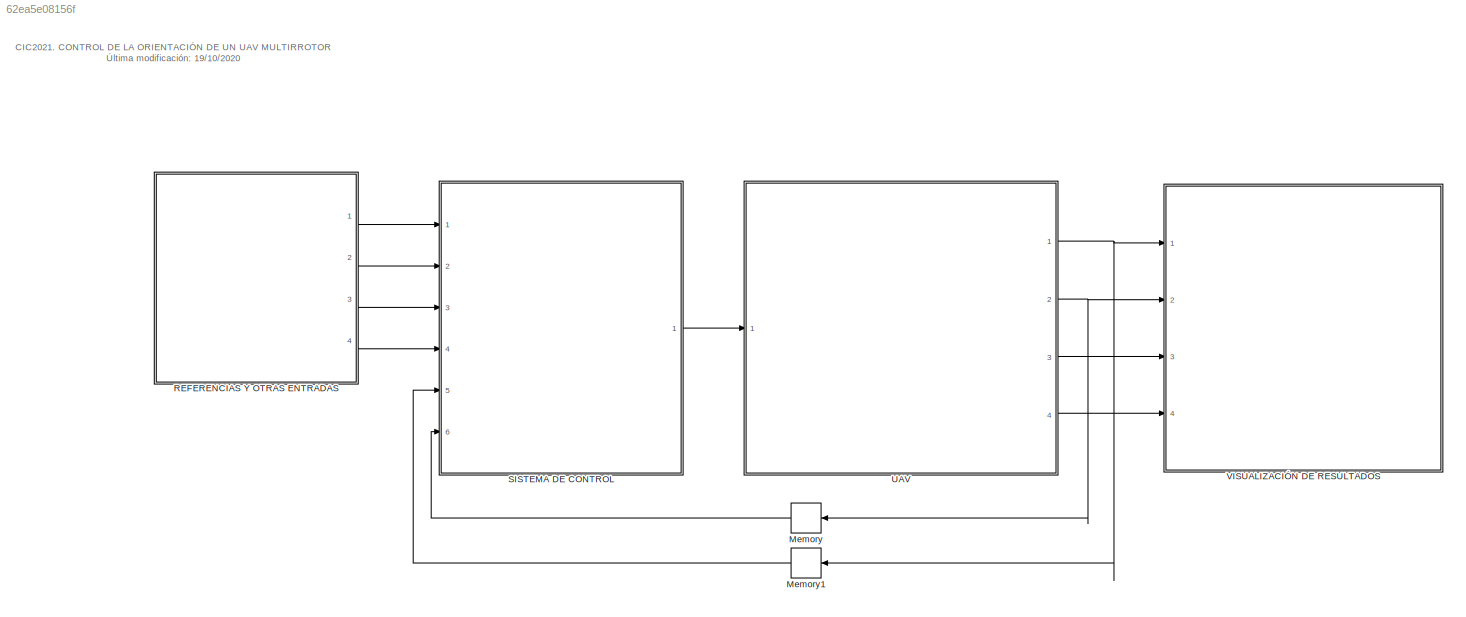
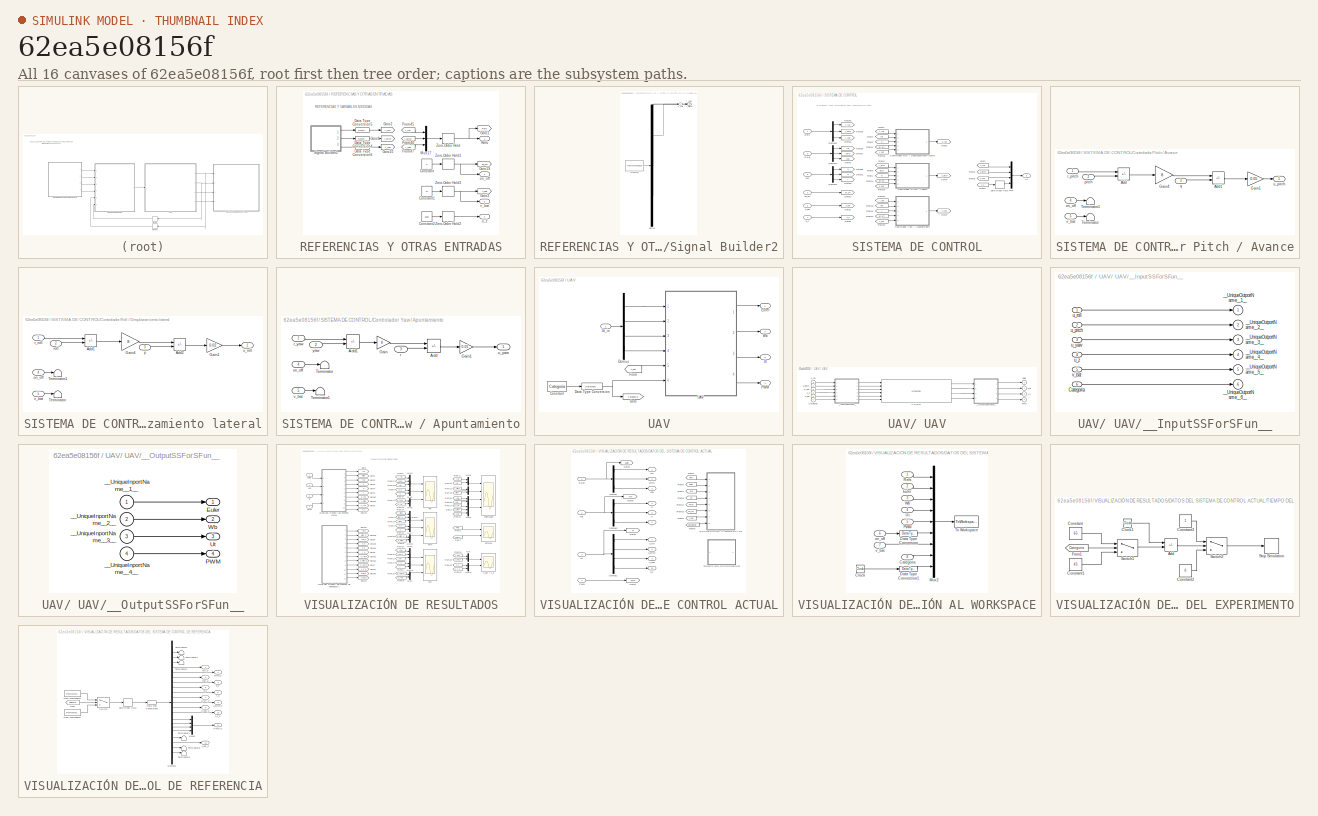
[diagram: thumbnail index - all 16 canvases of the model, root first then tree order]
MODEL slx_62ea5e08156f
KIND model
CONFIG AbsTol = auto
CONFIG EnableMultiTasking = off
CONFIG FixedStep = Ts
CONFIG InitFcn = Ts_com =0.0200;\nTs= 0.0100;\nload DatosCref;\n
CONFIG MaxStep = Ts
CONFIG MinStep = auto
CONFIG RelTol = 1e-3
CONFIG SampleTimeConstraint = Unconstrained
CONFIG SolverName = FixedStepAuto
CONFIG StartTime = 0.0
CONFIG StopFcn = clear tf Ts Ts_com tout DatosCrefC1 DatosCrefC2;\n
CONFIG StopTime = inf
BLOCK [Memory] Memory
BLOCK [Memory] Memory1
BLOCK [SubSystem] REFERENCIAS Y OTRAS ENTRADAS
  Ports = [0, 4]
  RequestExecContextInheritance = off
BLOCK [Constant] REFERENCIAS Y OTRAS ENTRADAS/Constant
  OutDataTypeStr = int16
  Value = 0
BLOCK [Constant] REFERENCIAS Y OTRAS ENTRADAS/Constant1
  OutDataTypeStr = single
  Value = 11
BLOCK [Constant] REFERENCIAS Y OTRAS ENTRADAS/Constant2
  OutDataTypeStr = single
  Value = 1500
BLOCK [DataTypeConversion] REFERENCIAS Y OTRAS ENTRADAS/Data Type Conversion4
  OutDataTypeStr = single
  RndMeth = Floor
  SaturateOnIntegerOverflow = off
BLOCK [DataTypeConversion] REFERENCIAS Y OTRAS ENTRADAS/Data Type Conversion5
  OutDataTypeStr = single
  RndMeth = Floor
  SaturateOnIntegerOverflow = off
BLOCK [DataTypeConversion] REFERENCIAS Y OTRAS ENTRADAS/Data Type Conversion6
  OutDataTypeStr = single
  RndMeth = Floor
  SaturateOnIntegerOverflow = off
BLOCK [From] REFERENCIAS Y OTRAS ENTRADAS/From45
  GotoTag = r_roll
  TagVisibility = global
BLOCK [From] REFERENCIAS Y OTRAS ENTRADAS/From46
  GotoTag = r_pitch
  TagVisibility = global
BLOCK [From] REFERENCIAS Y OTRAS ENTRADAS/From47
  GotoTag = r_yaw
  TagVisibility = global
BLOCK [Goto] REFERENCIAS Y OTRAS ENTRADAS/Goto1
  GotoTag = Refs
  TagVisibility = global
BLOCK [Goto] REFERENCIAS Y OTRAS ENTRADAS/Goto10
  GotoTag = r_yaw
  TagVisibility = global
BLOCK [Goto] REFERENCIAS Y OTRAS ENTRADAS/Goto19
  GotoTag = on_off
  TagVisibility = global
BLOCK [Goto] REFERENCIAS Y OTRAS ENTRADAS/Goto2
  GotoTag = r_roll
  TagVisibility = global
BLOCK [Goto] REFERENCIAS Y OTRAS ENTRADAS/Goto3
  GotoTag = v_bat
  TagVisibility = global
BLOCK [Goto] REFERENCIAS Y OTRAS ENTRADAS/Goto9
  GotoTag = r_pitch
  TagVisibility = global
BLOCK [Mux] REFERENCIAS Y OTRAS ENTRADAS/Mux17
  DisplayOption = bar
  Inputs = 3
  Ports = [3, 1]
BLOCK [Outport] REFERENCIAS Y OTRAS ENTRADAS/Refs
  VectorParamsAs1DForOutWhenUnconnected = off
BLOCK [SubSystem] REFERENCIAS Y OTRAS ENTRADAS/Signal Builder2
  ClipboardFcn = sigbuilder_block('clipboard');
  CloseFcn = sigbuilder_block('close');
  ContinueFcn = sigbuilder_block('continue');
  CopyFcn = sigbuilder_block('copy');
  DeleteFcn = sigbuilder_block('delete');
  LoadFcn = sigbuilder_block('load');
  MaskHideContents = on
  ModelCloseFcn = sigbuilder_block('modelClose');
  NameChangeFcn = sigbuilder_block('namechange');
  OpenFcn = sigbuilder_block('open',[571.8 30.6 574.8 516.6 ]);
  PauseFcn = sigbuilder_block('pause');
  Ports = [0, 3]
  PreSaveFcn = sigbuilder_block('preSave');
  RequestExecContextInheritance = off
  StartFcn = sigbuilder_block('start');
  StopFcn = sigbuilder_block('stop');
  Tag = STV Subsys
BLOCK [Demux] REFERENCIAS Y OTRAS ENTRADAS/Signal Builder2/Demux
  DisplayOption = none
  Outputs = 3
  Ports = [1, 3]
  Tag = STV Demux
BLOCK [FromWorkspace] REFERENCIAS Y OTRAS ENTRADAS/Signal Builder2/FromWs
  Tag = STV FromWs
  VariableName = tuvar
BLOCK [Outport] REFERENCIAS Y OTRAS ENTRADAS/Signal Builder2/r_pitch
  Port = 2
  Tag = STV Outport
  VectorParamsAs1DForOutWhenUnconnected = off
BLOCK [Outport] REFERENCIAS Y OTRAS ENTRADAS/Signal Builder2/r_roll
  Tag = STV Outport
  VectorParamsAs1DForOutWhenUnconnected = off
BLOCK [Outport] REFERENCIAS Y OTRAS ENTRADAS/Signal Builder2/r_yaw
  Port = 3
  Tag = STV Outport
  VectorParamsAs1DForOutWhenUnconnected = off
BLOCK [ZeroOrderHold] REFERENCIAS Y OTRAS ENTRADAS/Zero-Order Hold
  SampleTime = Ts_com
BLOCK [ZeroOrderHold] REFERENCIAS Y OTRAS ENTRADAS/Zero-Order Hold1
  SampleTime = Ts_com
BLOCK [ZeroOrderHold] REFERENCIAS Y OTRAS ENTRADAS/Zero-Order Hold2
  SampleTime = Ts_com
BLOCK [ZeroOrderHold] REFERENCIAS Y OTRAS ENTRADAS/Zero-Order Hold3
  SampleTime = Ts
BLOCK [Outport] REFERENCIAS Y OTRAS ENTRADAS/on_off
  Port = 2
  VectorParamsAs1DForOutWhenUnconnected = off
BLOCK [Outport] REFERENCIAS Y OTRAS ENTRADAS/u_z
  Port = 4
  VectorParamsAs1DForOutWhenUnconnected = off
BLOCK [Outport] REFERENCIAS Y OTRAS ENTRADAS/v_bat
  Port = 3
  VectorParamsAs1DForOutWhenUnconnected = off
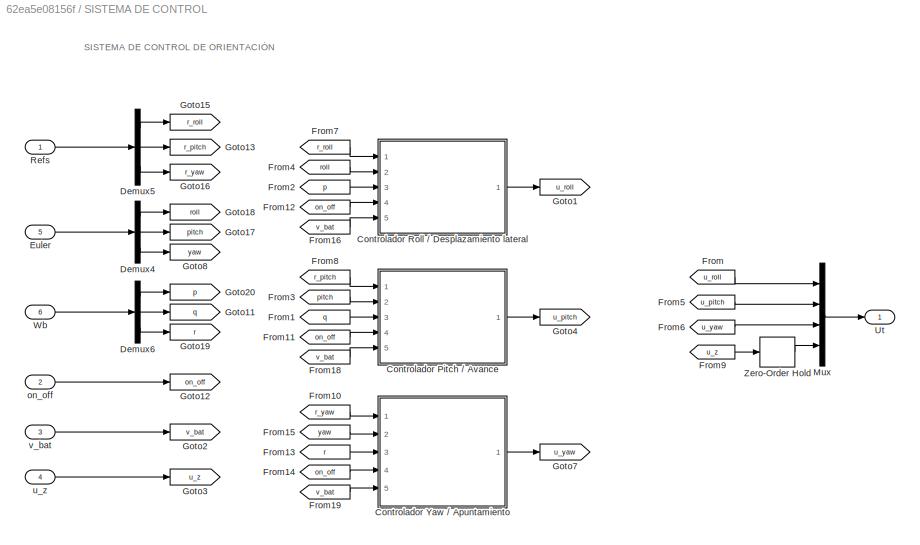
BLOCK [SubSystem] SISTEMA DE CONTROL
  Ports = [6, 1]
  RequestExecContextInheritance = off
BLOCK [SubSystem] SISTEMA DE CONTROL/Controlador Pitch // Avance
  Ports = [5, 1]
  RequestExecContextInheritance = off
BLOCK [Sum] SISTEMA DE CONTROL/Controlador Pitch // Avance/Add
  IconShape = rectangular
  Inputs = +-
  Ports = [2, 1]
BLOCK [Sum] SISTEMA DE CONTROL/Controlador Pitch // Avance/Add1
  IconShape = rectangular
  Inputs = +-
  Ports = [2, 1]
BLOCK [Gain] SISTEMA DE CONTROL/Controlador Pitch // Avance/Gain1
  Gain = 0.05
  OutDataTypeStr = single
BLOCK [Gain] SISTEMA DE CONTROL/Controlador Pitch // Avance/Gain4
  Gain = 8
BLOCK [Terminator] SISTEMA DE CONTROL/Controlador Pitch // Avance/Terminator
BLOCK [Terminator] SISTEMA DE CONTROL/Controlador Pitch // Avance/Terminator1
BLOCK [Inport] SISTEMA DE CONTROL/Controlador Pitch // Avance/on_off
  Port = 4
BLOCK [Inport] SISTEMA DE CONTROL/Controlador Pitch // Avance/pitch
  Port = 2
BLOCK [Inport] SISTEMA DE CONTROL/Controlador Pitch // Avance/q
  Port = 3
BLOCK [Inport] SISTEMA DE CONTROL/Controlador Pitch // Avance/r_pitch
BLOCK [Outport] SISTEMA DE CONTROL/Controlador Pitch // Avance/u_pitch
  VectorParamsAs1DForOutWhenUnconnected = off
BLOCK [Inport] SISTEMA DE CONTROL/Controlador Pitch // Avance/v_bat
  Port = 5
BLOCK [SubSystem] SISTEMA DE CONTROL/Controlador Roll // Desplazamiento lateral
  Ports = [5, 1]
  RequestExecContextInheritance = off
BLOCK [Sum] SISTEMA DE CONTROL/Controlador Roll // Desplazamiento lateral/Add1
  IconShape = rectangular
  Inputs = +-
  Ports = [2, 1]
BLOCK [Sum] SISTEMA DE CONTROL/Controlador Roll // Desplazamiento lateral/Add2
  IconShape = rectangular
  Inputs = +-
  Ports = [2, 1]
BLOCK [Gain] SISTEMA DE CONTROL/Controlador Roll // Desplazamiento lateral/Gain1
  Gain = 0.02
  OutDataTypeStr = single
BLOCK [Gain] SISTEMA DE CONTROL/Controlador Roll // Desplazamiento lateral/Gain4
  Gain = 8
BLOCK [Terminator] SISTEMA DE CONTROL/Controlador Roll // Desplazamiento lateral/Terminator
BLOCK [Terminator] SISTEMA DE CONTROL/Controlador Roll // Desplazamiento lateral/Terminator1
BLOCK [Inport] SISTEMA DE CONTROL/Controlador Roll // Desplazamiento lateral/on_off
  Port = 4
BLOCK [Inport] SISTEMA DE CONTROL/Controlador Roll // Desplazamiento lateral/p
  Port = 3
BLOCK [Inport] SISTEMA DE CONTROL/Controlador Roll // Desplazamiento lateral/r_roll
BLOCK [Inport] SISTEMA DE CONTROL/Controlador Roll // Desplazamiento lateral/roll
  Port = 2
BLOCK [Outport] SISTEMA DE CONTROL/Controlador Roll // Desplazamiento lateral/u_roll
  VectorParamsAs1DForOutWhenUnconnected = off
BLOCK [Inport] SISTEMA DE CONTROL/Controlador Roll // Desplazamiento lateral/v_bat
  Port = 5
BLOCK [SubSystem] SISTEMA DE CONTROL/Controlador Yaw // Apuntamiento
  Ports = [5, 1]
  RequestExecContextInheritance = off
BLOCK [Sum] SISTEMA DE CONTROL/Controlador Yaw // Apuntamiento/Add
  IconShape = rectangular
  Inputs = +-
  Ports = [2, 1]
BLOCK [Sum] SISTEMA DE CONTROL/Controlador Yaw // Apuntamiento/Add1
  IconShape = rectangular
  Inputs = +-
  Ports = [2, 1]
BLOCK [Gain] SISTEMA DE CONTROL/Controlador Yaw // Apuntamiento/Gain
  Gain = 8
BLOCK [Gain] SISTEMA DE CONTROL/Controlador Yaw // Apuntamiento/Gain1
  Gain = 0.05
BLOCK [Terminator] SISTEMA DE CONTROL/Controlador Yaw // Apuntamiento/Terminator
BLOCK [Terminator] SISTEMA DE CONTROL/Controlador Yaw // Apuntamiento/Terminator1
BLOCK [Inport] SISTEMA DE CONTROL/Controlador Yaw // Apuntamiento/on_off
  Port = 4
BLOCK [Inport] SISTEMA DE CONTROL/Controlador Yaw // Apuntamiento/r
  Port = 3
BLOCK [Inport] SISTEMA DE CONTROL/Controlador Yaw // Apuntamiento/r_yaw
BLOCK [Outport] SISTEMA DE CONTROL/Controlador Yaw // Apuntamiento/u_yaw
  VectorParamsAs1DForOutWhenUnconnected = off
BLOCK [Inport] SISTEMA DE CONTROL/Controlador Yaw // Apuntamiento/v_bat
  Port = 5
BLOCK [Inport] SISTEMA DE CONTROL/Controlador Yaw // Apuntamiento/yaw
  Port = 2
BLOCK [Demux] SISTEMA DE CONTROL/Demux4
  Outputs = 3
  Ports = [1, 3]
BLOCK [Demux] SISTEMA DE CONTROL/Demux5
  Outputs = 3
  Ports = [1, 3]
BLOCK [Demux] SISTEMA DE CONTROL/Demux6
  Outputs = 3
  Ports = [1, 3]
BLOCK [Inport] SISTEMA DE CONTROL/Euler
  Port = 5
BLOCK [From] SISTEMA DE CONTROL/From
  GotoTag = u_roll
BLOCK [From] SISTEMA DE CONTROL/From1
  GotoTag = q
BLOCK [From] SISTEMA DE CONTROL/From10
  GotoTag = r_yaw
BLOCK [From] SISTEMA DE CONTROL/From11
  GotoTag = on_off
BLOCK [From] SISTEMA DE CONTROL/From12
  GotoTag = on_off
BLOCK [From] SISTEMA DE CONTROL/From13
  GotoTag = r
BLOCK [From] SISTEMA DE CONTROL/From14
  GotoTag = on_off
BLOCK [From] SISTEMA DE CONTROL/From15
  GotoTag = yaw
BLOCK [From] SISTEMA DE CONTROL/From16
  GotoTag = v_bat
BLOCK [From] SISTEMA DE CONTROL/From18
  GotoTag = v_bat
BLOCK [From] SISTEMA DE CONTROL/From19
  GotoTag = v_bat
BLOCK [From] SISTEMA DE CONTROL/From2
  GotoTag = p
BLOCK [From] SISTEMA DE CONTROL/From3
  GotoTag = pitch
BLOCK [From] SISTEMA DE CONTROL/From4
  GotoTag = roll
BLOCK [From] SISTEMA DE CONTROL/From5
  GotoTag = u_pitch
BLOCK [From] SISTEMA DE CONTROL/From6
  GotoTag = u_yaw
BLOCK [From] SISTEMA DE CONTROL/From7
  GotoTag = r_roll
BLOCK [From] SISTEMA DE CONTROL/From8
  GotoTag = r_pitch
BLOCK [From] SISTEMA DE CONTROL/From9
  GotoTag = u_z
BLOCK [Goto] SISTEMA DE CONTROL/Goto1
  GotoTag = u_roll
BLOCK [Goto] SISTEMA DE CONTROL/Goto11
  GotoTag = q
BLOCK [Goto] SISTEMA DE CONTROL/Goto12
  GotoTag = on_off
BLOCK [Goto] SISTEMA DE CONTROL/Goto13
  GotoTag = r_pitch
BLOCK [Goto] SISTEMA DE CONTROL/Goto15
  GotoTag = r_roll
BLOCK [Goto] SISTEMA DE CONTROL/Goto16
  GotoTag = r_yaw
BLOCK [Goto] SISTEMA DE CONTROL/Goto17
  GotoTag = pitch
BLOCK [Goto] SISTEMA DE CONTROL/Goto18
  GotoTag = roll
BLOCK [Goto] SISTEMA DE CONTROL/Goto19
  GotoTag = r
BLOCK [Goto] SISTEMA DE CONTROL/Goto2
  GotoTag = v_bat
BLOCK [Goto] SISTEMA DE CONTROL/Goto20
  GotoTag = p
BLOCK [Goto] SISTEMA DE CONTROL/Goto3
  GotoTag = u_z
BLOCK [Goto] SISTEMA DE CONTROL/Goto4
  GotoTag = u_pitch
BLOCK [Goto] SISTEMA DE CONTROL/Goto7
  GotoTag = u_yaw
BLOCK [Goto] SISTEMA DE CONTROL/Goto8
  GotoTag = yaw
BLOCK [Mux] SISTEMA DE CONTROL/Mux
  DisplayOption = bar
  Ports = [4, 1]
BLOCK [Inport] SISTEMA DE CONTROL/Refs
BLOCK [Outport] SISTEMA DE CONTROL/Ut
  VectorParamsAs1DForOutWhenUnconnected = off
BLOCK [Inport] SISTEMA DE CONTROL/Wb
  Port = 6
BLOCK [ZeroOrderHold] SISTEMA DE CONTROL/Zero-Order Hold
  SampleTime = Ts
BLOCK [Inport] SISTEMA DE CONTROL/on_off
  Port = 2
BLOCK [Inport] SISTEMA DE CONTROL/u_z
  Port = 4
BLOCK [Inport] SISTEMA DE CONTROL/v_bat
  Port = 3
BLOCK [SubSystem] UAV
  Ports = [1, 4]
  RequestExecContextInheritance = off
  SystemSampleTime = Ts3
BLOCK [SubSystem] UAV/ UAV
  Ports = [6, 4]
  RequestExecContextInheritance = off
BLOCK [S-Function] UAV/ UAV/ UAV_sfcn
  CopyFcn = if ~strcmp(get_param(gcb,'Linkstatus'),'none') && ...\n~strcmp(get_param(gcb,'Linkstatus'),'implicit')      \n  set_param(gcb,'LinkStatus','none');                \nend
  EnableBusSupport = off
  FunctionName = UAV_sf
  Ports = [6, 4]
  SFcnIsStateOwnerBlock = on
  SFcnStateName = DWORK0
  SFunctionDeploymentMode = off
BLOCK [Inport] UAV/ UAV/Categoria
  Port = 6
BLOCK [Outport] UAV/ UAV/Euler
  VectorParamsAs1DForOutWhenUnconnected = off
BLOCK [Outport] UAV/ UAV/PWM
  Port = 4
  VectorParamsAs1DForOutWhenUnconnected = off
BLOCK [Outport] UAV/ UAV/Ut
  Port = 3
  VectorParamsAs1DForOutWhenUnconnected = off
BLOCK [Outport] UAV/ UAV/Wb
  Port = 2
  VectorParamsAs1DForOutWhenUnconnected = off
BLOCK [SubSystem] UAV/ UAV/__InputSSForSFun__
  PermitHierarchicalResolution = ExplicitOnly
  Ports = [6, 6]
  RequestExecContextInheritance = off
BLOCK [Inport] UAV/ UAV/__InputSSForSFun__/Categoria
  Port = 6
BLOCK [Outport] UAV/ UAV/__InputSSForSFun__/__UniqueOutportName__1__
BLOCK [Outport] UAV/ UAV/__InputSSForSFun__/__UniqueOutportName__2__
  Port = 2
BLOCK [Outport] UAV/ UAV/__InputSSForSFun__/__UniqueOutportName__3__
  Port = 3
BLOCK [Outport] UAV/ UAV/__InputSSForSFun__/__UniqueOutportName__4__
  Port = 4
BLOCK [Outport] UAV/ UAV/__InputSSForSFun__/__UniqueOutportName__5__
  Port = 5
BLOCK [Outport] UAV/ UAV/__InputSSForSFun__/__UniqueOutportName__6__
  Port = 6
BLOCK [Inport] UAV/ UAV/__InputSSForSFun__/u_pitch
  Port = 2
BLOCK [Inport] UAV/ UAV/__InputSSForSFun__/u_roll
BLOCK [Inport] UAV/ UAV/__InputSSForSFun__/u_yaw
  Port = 3
BLOCK [Inport] UAV/ UAV/__InputSSForSFun__/u_z
  Port = 4
BLOCK [Inport] UAV/ UAV/__InputSSForSFun__/v_bat
  Port = 5
BLOCK [SubSystem] UAV/ UAV/__OutputSSForSFun__
  PermitHierarchicalResolution = ExplicitOnly
  Ports = [4, 4]
  RequestExecContextInheritance = off
BLOCK [Outport] UAV/ UAV/__OutputSSForSFun__/Euler
  VectorParamsAs1DForOutWhenUnconnected = off
BLOCK [Outport] UAV/ UAV/__OutputSSForSFun__/PWM
  Port = 4
  VectorParamsAs1DForOutWhenUnconnected = off
BLOCK [Outport] UAV/ UAV/__OutputSSForSFun__/Ut
  Port = 3
  VectorParamsAs1DForOutWhenUnconnected = off
BLOCK [Outport] UAV/ UAV/__OutputSSForSFun__/Wb
  Port = 2
  VectorParamsAs1DForOutWhenUnconnected = off
BLOCK [Inport] UAV/ UAV/__OutputSSForSFun__/__UniqueInportName__1__
BLOCK [Inport] UAV/ UAV/__OutputSSForSFun__/__UniqueInportName__2__
  Port = 2
BLOCK [Inport] UAV/ UAV/__OutputSSForSFun__/__UniqueInportName__3__
  Port = 3
BLOCK [Inport] UAV/ UAV/__OutputSSForSFun__/__UniqueInportName__4__
  Port = 4
BLOCK [Inport] UAV/ UAV/u_pitch
  Port = 2
BLOCK [Inport] UAV/ UAV/u_roll
BLOCK [Inport] UAV/ UAV/u_yaw
  Port = 3
BLOCK [Inport] UAV/ UAV/u_z
  Port = 4
BLOCK [Inport] UAV/ UAV/v_bat
  Port = 5
BLOCK [Constant] UAV/Constant
  Value = Categoria
BLOCK [DataTypeConversion] UAV/Data Type Conversion
  OutDataTypeStr = single
  RndMeth = Floor
  SaturateOnIntegerOverflow = off
BLOCK [Demux] UAV/Demux
  Ports = [1, 4]
BLOCK [Outport] UAV/Euler
  VectorParamsAs1DForOutWhenUnconnected = off
BLOCK [From] UAV/From
  GotoTag = v_bat
  TagVisibility = global
BLOCK [Goto] UAV/Goto
  GotoTag = Categoria
  TagVisibility = global
BLOCK [Outport] UAV/PWM
  Port = 4
  VectorParamsAs1DForOutWhenUnconnected = off
BLOCK [Outport] UAV/Ut
  Port = 3
  VectorParamsAs1DForOutWhenUnconnected = off
BLOCK [Inport] UAV/Ut_in
BLOCK [Outport] UAV/Wb
  Port = 2
  VectorParamsAs1DForOutWhenUnconnected = off
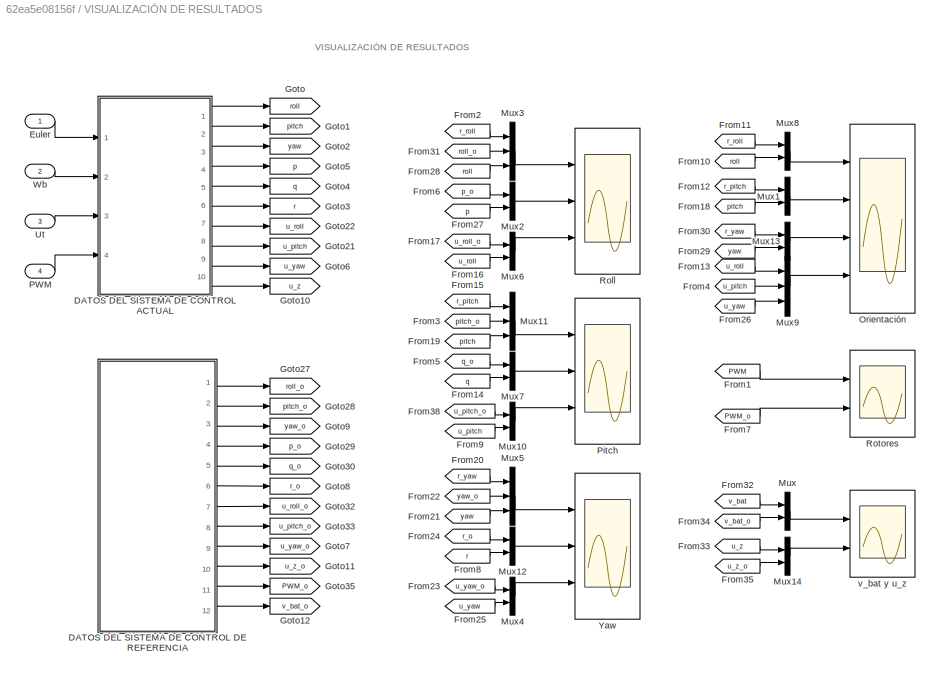
BLOCK [SubSystem] VISUALIZACIÓN DE RESULTADOS
  Ports = [4]
  RequestExecContextInheritance = off
BLOCK [SubSystem] VISUALIZACIÓN DE RESULTADOS/DATOS DEL SISTEMA DE CONTROL ACTUAL
  Ports = [4, 10]
  RequestExecContextInheritance = off
BLOCK [Demux] VISUALIZACIÓN DE RESULTADOS/DATOS DEL SISTEMA DE CONTROL ACTUAL/Demux
  Outputs = 3
  Ports = [1, 3]
BLOCK [Demux] VISUALIZACIÓN DE RESULTADOS/DATOS DEL SISTEMA DE CONTROL ACTUAL/Demux1
  Ports = [1, 4]
BLOCK [Demux] VISUALIZACIÓN DE RESULTADOS/DATOS DEL SISTEMA DE CONTROL ACTUAL/Demux2
  Outputs = 3
  Ports = [1, 3]
BLOCK [SubSystem] VISUALIZACIÓN DE RESULTADOS/DATOS DEL SISTEMA DE CONTROL ACTUAL/EXPORTACIÓN AL WORKSPACE
  Ports = [8]
  RequestExecContextInheritance = off
BLOCK [Inport] VISUALIZACIÓN DE RESULTADOS/DATOS DEL SISTEMA DE CONTROL ACTUAL/EXPORTACIÓN AL WORKSPACE/Categoria
  Port = 8
BLOCK [Clock] VISUALIZACIÓN DE RESULTADOS/DATOS DEL SISTEMA DE CONTROL ACTUAL/EXPORTACIÓN AL WORKSPACE/Clock
  Decimation = 1
BLOCK [DataTypeConversion] VISUALIZACIÓN DE RESULTADOS/DATOS DEL SISTEMA DE CONTROL ACTUAL/EXPORTACIÓN AL WORKSPACE/Data Type Conversion
  OutDataTypeStr = single
  RndMeth = Floor
  SaturateOnIntegerOverflow = off
BLOCK [DataTypeConversion] VISUALIZACIÓN DE RESULTADOS/DATOS DEL SISTEMA DE CONTROL ACTUAL/EXPORTACIÓN AL WORKSPACE/Data Type Conversion1
  OutDataTypeStr = single
  RndMeth = Floor
  SaturateOnIntegerOverflow = off
BLOCK [Inport] VISUALIZACIÓN DE RESULTADOS/DATOS DEL SISTEMA DE CONTROL ACTUAL/EXPORTACIÓN AL WORKSPACE/Euler
  Port = 2
BLOCK [Mux] VISUALIZACIÓN DE RESULTADOS/DATOS DEL SISTEMA DE CONTROL ACTUAL/EXPORTACIÓN AL WORKSPACE/Mux2
  DisplayOption = bar
  Inputs = 9
  Ports = [9, 1]
BLOCK [Inport] VISUALIZACIÓN DE RESULTADOS/DATOS DEL SISTEMA DE CONTROL ACTUAL/EXPORTACIÓN AL WORKSPACE/PWM
  Port = 5
BLOCK [Inport] VISUALIZACIÓN DE RESULTADOS/DATOS DEL SISTEMA DE CONTROL ACTUAL/EXPORTACIÓN AL WORKSPACE/Refs
BLOCK [ToWorkspace] VISUALIZACIÓN DE RESULTADOS/DATOS DEL SISTEMA DE CONTROL ACTUAL/EXPORTACIÓN AL WORKSPACE/To Workspace
  Decimation = 2
  FixptAsFi = on
  MaxDataPoints = inf
  Ports = [1]
  SampleTime = -1
  SaveFormat = Structure With Time
  VariableName = Datos
BLOCK [Inport] VISUALIZACIÓN DE RESULTADOS/DATOS DEL SISTEMA DE CONTROL ACTUAL/EXPORTACIÓN AL WORKSPACE/Ut
  Port = 4
BLOCK [Inport] VISUALIZACIÓN DE RESULTADOS/DATOS DEL SISTEMA DE CONTROL ACTUAL/EXPORTACIÓN AL WORKSPACE/Wb
  Port = 3
BLOCK [Inport] VISUALIZACIÓN DE RESULTADOS/DATOS DEL SISTEMA DE CONTROL ACTUAL/EXPORTACIÓN AL WORKSPACE/on_off
  Port = 6
BLOCK [Inport] VISUALIZACIÓN DE RESULTADOS/DATOS DEL SISTEMA DE CONTROL ACTUAL/EXPORTACIÓN AL WORKSPACE/v_bat
  Port = 7
BLOCK [Inport] VISUALIZACIÓN DE RESULTADOS/DATOS DEL SISTEMA DE CONTROL ACTUAL/Euler
BLOCK [From] VISUALIZACIÓN DE RESULTADOS/DATOS DEL SISTEMA DE CONTROL ACTUAL/From1
  GotoTag = Refs
  TagVisibility = global
BLOCK [From] VISUALIZACIÓN DE RESULTADOS/DATOS DEL SISTEMA DE CONTROL ACTUAL/From14
  GotoTag = PWM
  TagVisibility = global
BLOCK [From] VISUALIZACIÓN DE RESULTADOS/DATOS DEL SISTEMA DE CONTROL ACTUAL/From16
  GotoTag = on_off
  TagVisibility = global
BLOCK [From] VISUALIZACIÓN DE RESULTADOS/DATOS DEL SISTEMA DE CONTROL ACTUAL/From2
  GotoTag = v_bat
  TagVisibility = global
BLOCK [From] VISUALIZACIÓN DE RESULTADOS/DATOS DEL SISTEMA DE CONTROL ACTUAL/From3
  GotoTag = Categoria
  TagVisibility = global
BLOCK [From] VISUALIZACIÓN DE RESULTADOS/DATOS DEL SISTEMA DE CONTROL ACTUAL/From6
  GotoTag = Euler
BLOCK [From] VISUALIZACIÓN DE RESULTADOS/DATOS DEL SISTEMA DE CONTROL ACTUAL/From7
  GotoTag = Wb
BLOCK [From] VISUALIZACIÓN DE RESULTADOS/DATOS DEL SISTEMA DE CONTROL ACTUAL/From9
  GotoTag = Ut
BLOCK [Goto] VISUALIZACIÓN DE RESULTADOS/DATOS DEL SISTEMA DE CONTROL ACTUAL/Goto1
  GotoTag = PWM
  TagVisibility = global
BLOCK [Goto] VISUALIZACIÓN DE RESULTADOS/DATOS DEL SISTEMA DE CONTROL ACTUAL/Goto2
  GotoTag = Euler
BLOCK [Goto] VISUALIZACIÓN DE RESULTADOS/DATOS DEL SISTEMA DE CONTROL ACTUAL/Goto3
  GotoTag = Wb
BLOCK [Goto] VISUALIZACIÓN DE RESULTADOS/DATOS DEL SISTEMA DE CONTROL ACTUAL/Goto6
  GotoTag = Ut
BLOCK [Inport] VISUALIZACIÓN DE RESULTADOS/DATOS DEL SISTEMA DE CONTROL ACTUAL/PWM
  Port = 4
BLOCK [SubSystem] VISUALIZACIÓN DE RESULTADOS/DATOS DEL SISTEMA DE CONTROL ACTUAL/TIEMPO DEL EXPERIMENTO
  Ports = []
  RequestExecContextInheritance = off
BLOCK [Sum] VISUALIZACIÓN DE RESULTADOS/DATOS DEL SISTEMA DE CONTROL ACTUAL/TIEMPO DEL EXPERIMENTO/Add
  IconShape = rectangular
  Inputs = +-
  Ports = [2, 1]
BLOCK [Clock] VISUALIZACIÓN DE RESULTADOS/DATOS DEL SISTEMA DE CONTROL ACTUAL/TIEMPO DEL EXPERIMENTO/Clock1
BLOCK [Constant] VISUALIZACIÓN DE RESULTADOS/DATOS DEL SISTEMA DE CONTROL ACTUAL/TIEMPO DEL EXPERIMENTO/Constant
  Value = 65
BLOCK [Constant] VISUALIZACIÓN DE RESULTADOS/DATOS DEL SISTEMA DE CONTROL ACTUAL/TIEMPO DEL EXPERIMENTO/Constant1
  Value = 45
BLOCK [Constant] VISUALIZACIÓN DE RESULTADOS/DATOS DEL SISTEMA DE CONTROL ACTUAL/TIEMPO DEL EXPERIMENTO/Constant2
  Value = 0
BLOCK [Constant] VISUALIZACIÓN DE RESULTADOS/DATOS DEL SISTEMA DE CONTROL ACTUAL/TIEMPO DEL EXPERIMENTO/Constant3
BLOCK [From] VISUALIZACIÓN DE RESULTADOS/DATOS DEL SISTEMA DE CONTROL ACTUAL/TIEMPO DEL EXPERIMENTO/From1
  GotoTag = Categoria
  TagVisibility = global
BLOCK [Stop] VISUALIZACIÓN DE RESULTADOS/DATOS DEL SISTEMA DE CONTROL ACTUAL/TIEMPO DEL EXPERIMENTO/Stop Simulation
BLOCK [Switch] VISUALIZACIÓN DE RESULTADOS/DATOS DEL SISTEMA DE CONTROL ACTUAL/TIEMPO DEL EXPERIMENTO/Switch1
  Criteria = u2 > Threshold
  InputSameDT = off
  SaturateOnIntegerOverflow = off
  Threshold = 1
BLOCK [Switch] VISUALIZACIÓN DE RESULTADOS/DATOS DEL SISTEMA DE CONTROL ACTUAL/TIEMPO DEL EXPERIMENTO/Switch2
  InputSameDT = off
  SaturateOnIntegerOverflow = off
BLOCK [Inport] VISUALIZACIÓN DE RESULTADOS/DATOS DEL SISTEMA DE CONTROL ACTUAL/Ut
  Port = 3
BLOCK [Inport] VISUALIZACIÓN DE RESULTADOS/DATOS DEL SISTEMA DE CONTROL ACTUAL/Wb
  Port = 2
BLOCK [Outport] VISUALIZACIÓN DE RESULTADOS/DATOS DEL SISTEMA DE CONTROL ACTUAL/p
  Port = 4
  VectorParamsAs1DForOutWhenUnconnected = off
BLOCK [Outport] VISUALIZACIÓN DE RESULTADOS/DATOS DEL SISTEMA DE CONTROL ACTUAL/pitch
  Port = 2
  VectorParamsAs1DForOutWhenUnconnected = off
BLOCK [Outport] VISUALIZACIÓN DE RESULTADOS/DATOS DEL SISTEMA DE CONTROL ACTUAL/q
  Port = 5
  VectorParamsAs1DForOutWhenUnconnected = off
BLOCK [Outport] VISUALIZACIÓN DE RESULTADOS/DATOS DEL SISTEMA DE CONTROL ACTUAL/r
  Port = 6
  VectorParamsAs1DForOutWhenUnconnected = off
BLOCK [Outport] VISUALIZACIÓN DE RESULTADOS/DATOS DEL SISTEMA DE CONTROL ACTUAL/roll
  VectorParamsAs1DForOutWhenUnconnected = off
BLOCK [Outport] VISUALIZACIÓN DE RESULTADOS/DATOS DEL SISTEMA DE CONTROL ACTUAL/u_pitch
  Port = 8
  VectorParamsAs1DForOutWhenUnconnected = off
BLOCK [Outport] VISUALIZACIÓN DE RESULTADOS/DATOS DEL SISTEMA DE CONTROL ACTUAL/u_roll
  Port = 7
  VectorParamsAs1DForOutWhenUnconnected = off
BLOCK [Outport] VISUALIZACIÓN DE RESULTADOS/DATOS DEL SISTEMA DE CONTROL ACTUAL/u_yaw
  Port = 9
  VectorParamsAs1DForOutWhenUnconnected = off
BLOCK [Outport] VISUALIZACIÓN DE RESULTADOS/DATOS DEL SISTEMA DE CONTROL ACTUAL/u_z
  Port = 10
  VectorParamsAs1DForOutWhenUnconnected = off
BLOCK [Outport] VISUALIZACIÓN DE RESULTADOS/DATOS DEL SISTEMA DE CONTROL ACTUAL/yaw
  Port = 3
  VectorParamsAs1DForOutWhenUnconnected = off
BLOCK [SubSystem] VISUALIZACIÓN DE RESULTADOS/DATOS DEL SISTEMA DE CONTROL DE REFERENCIA
  Ports = [0, 12]
  RequestExecContextInheritance = off
BLOCK [DataTypeConversion] VISUALIZACIÓN DE RESULTADOS/DATOS DEL SISTEMA DE CONTROL DE REFERENCIA/Data Type Conversion6
  OutDataTypeStr = single
  RndMeth = Floor
  SaturateOnIntegerOverflow = off
BLOCK [Demux] VISUALIZACIÓN DE RESULTADOS/DATOS DEL SISTEMA DE CONTROL DE REFERENCIA/Demux6
  Outputs = 21
  Ports = [1, 21]
BLOCK [From] VISUALIZACIÓN DE RESULTADOS/DATOS DEL SISTEMA DE CONTROL DE REFERENCIA/From
  GotoTag = Categoria
  TagVisibility = global
BLOCK [FromWorkspace] VISUALIZACIÓN DE RESULTADOS/DATOS DEL SISTEMA DE CONTROL DE REFERENCIA/From Workspace1
  VariableName = DatosCrefC1
BLOCK [FromWorkspace] VISUALIZACIÓN DE RESULTADOS/DATOS DEL SISTEMA DE CONTROL DE REFERENCIA/From Workspace4
  VariableName = DatosCrefC2
BLOCK [Mux] VISUALIZACIÓN DE RESULTADOS/DATOS DEL SISTEMA DE CONTROL DE REFERENCIA/Mux15
  DisplayOption = bar
  Ports = [4, 1]
BLOCK [Outport] VISUALIZACIÓN DE RESULTADOS/DATOS DEL SISTEMA DE CONTROL DE REFERENCIA/PWM_o
  Port = 11
  VectorParamsAs1DForOutWhenUnconnected = off
BLOCK [Switch] VISUALIZACIÓN DE RESULTADOS/DATOS DEL SISTEMA DE CONTROL DE REFERENCIA/Switch
  Criteria = u2 > Threshold
  InputSameDT = off
  SaturateOnIntegerOverflow = off
  Threshold = 1
BLOCK [Terminator] VISUALIZACIÓN DE RESULTADOS/DATOS DEL SISTEMA DE CONTROL DE REFERENCIA/Terminator1
BLOCK [Terminator] VISUALIZACIÓN DE RESULTADOS/DATOS DEL SISTEMA DE CONTROL DE REFERENCIA/Terminator2
BLOCK [Terminator] VISUALIZACIÓN DE RESULTADOS/DATOS DEL SISTEMA DE CONTROL DE REFERENCIA/Terminator3
BLOCK [Terminator] VISUALIZACIÓN DE RESULTADOS/DATOS DEL SISTEMA DE CONTROL DE REFERENCIA/Terminator4
BLOCK [Terminator] VISUALIZACIÓN DE RESULTADOS/DATOS DEL SISTEMA DE CONTROL DE REFERENCIA/Terminator5
BLOCK [Terminator] VISUALIZACIÓN DE RESULTADOS/DATOS DEL SISTEMA DE CONTROL DE REFERENCIA/Terminator6
BLOCK [ZeroOrderHold] VISUALIZACIÓN DE RESULTADOS/DATOS DEL SISTEMA DE CONTROL DE REFERENCIA/Zero-Order Hold
  SampleTime = Ts_com
BLOCK [Outport] VISUALIZACIÓN DE RESULTADOS/DATOS DEL SISTEMA DE CONTROL DE REFERENCIA/p_o
  Port = 4
  VectorParamsAs1DForOutWhenUnconnected = off
BLOCK [Outport] VISUALIZACIÓN DE RESULTADOS/DATOS DEL SISTEMA DE CONTROL DE REFERENCIA/pitch_o
  Port = 2
  VectorParamsAs1DForOutWhenUnconnected = off
BLOCK [Outport] VISUALIZACIÓN DE RESULTADOS/DATOS DEL SISTEMA DE CONTROL DE REFERENCIA/q_o
  Port = 5
  VectorParamsAs1DForOutWhenUnconnected = off
BLOCK [Outport] VISUALIZACIÓN DE RESULTADOS/DATOS DEL SISTEMA DE CONTROL DE REFERENCIA/r_o
  Port = 6
  VectorParamsAs1DForOutWhenUnconnected = off
BLOCK [Outport] VISUALIZACIÓN DE RESULTADOS/DATOS DEL SISTEMA DE CONTROL DE REFERENCIA/roll_o
  VectorParamsAs1DForOutWhenUnconnected = off
BLOCK [Outport] VISUALIZACIÓN DE RESULTADOS/DATOS DEL SISTEMA DE CONTROL DE REFERENCIA/u_pitch_o
  Port = 8
  VectorParamsAs1DForOutWhenUnconnected = off
BLOCK [Outport] VISUALIZACIÓN DE RESULTADOS/DATOS DEL SISTEMA DE CONTROL DE REFERENCIA/u_roll_o
  Port = 7
  VectorParamsAs1DForOutWhenUnconnected = off
BLOCK [Outport] VISUALIZACIÓN DE RESULTADOS/DATOS DEL SISTEMA DE CONTROL DE REFERENCIA/u_yaw_o
  Port = 9
  VectorParamsAs1DForOutWhenUnconnected = off
BLOCK [Outport] VISUALIZACIÓN DE RESULTADOS/DATOS DEL SISTEMA DE CONTROL DE REFERENCIA/u_z_o
  Port = 10
  VectorParamsAs1DForOutWhenUnconnected = off
BLOCK [Outport] VISUALIZACIÓN DE RESULTADOS/DATOS DEL SISTEMA DE CONTROL DE REFERENCIA/v_bat_o
  Port = 12
  VectorParamsAs1DForOutWhenUnconnected = off
BLOCK [Outport] VISUALIZACIÓN DE RESULTADOS/DATOS DEL SISTEMA DE CONTROL DE REFERENCIA/yaw_o
  Port = 3
  VectorParamsAs1DForOutWhenUnconnected = off
BLOCK [Inport] VISUALIZACIÓN DE RESULTADOS/Euler
BLOCK [From] VISUALIZACIÓN DE RESULTADOS/From1
  GotoTag = PWM
  TagVisibility = global
BLOCK [From] VISUALIZACIÓN DE RESULTADOS/From10
  GotoTag = roll
BLOCK [From] VISUALIZACIÓN DE RESULTADOS/From11
  GotoTag = r_roll
  TagVisibility = global
BLOCK [From] VISUALIZACIÓN DE RESULTADOS/From12
  GotoTag = r_pitch
  TagVisibility = global
BLOCK [From] VISUALIZACIÓN DE RESULTADOS/From13
  GotoTag = u_roll
BLOCK [From] VISUALIZACIÓN DE RESULTADOS/From14
  GotoTag = q
BLOCK [From] VISUALIZACIÓN DE RESULTADOS/From15
  GotoTag = r_pitch
  TagVisibility = global
BLOCK [From] VISUALIZACIÓN DE RESULTADOS/From16
  GotoTag = u_roll
BLOCK [From] VISUALIZACIÓN DE RESULTADOS/From17
  GotoTag = u_roll_o
BLOCK [From] VISUALIZACIÓN DE RESULTADOS/From18
  GotoTag = pitch
BLOCK [From] VISUALIZACIÓN DE RESULTADOS/From19
  GotoTag = pitch
BLOCK [From] VISUALIZACIÓN DE RESULTADOS/From2
  GotoTag = r_roll
  TagVisibility = global
BLOCK [From] VISUALIZACIÓN DE RESULTADOS/From20
  GotoTag = r_yaw
  TagVisibility = global
BLOCK [From] VISUALIZACIÓN DE RESULTADOS/From21
  GotoTag = yaw
BLOCK [From] VISUALIZACIÓN DE RESULTADOS/From22
  GotoTag = yaw_o
BLOCK [From] VISUALIZACIÓN DE RESULTADOS/From23
  GotoTag = u_yaw_o
BLOCK [From] VISUALIZACIÓN DE RESULTADOS/From24
  GotoTag = r_o
BLOCK [From] VISUALIZACIÓN DE RESULTADOS/From25
  GotoTag = u_yaw
BLOCK [From] VISUALIZACIÓN DE RESULTADOS/From26
  GotoTag = u_yaw
BLOCK [From] VISUALIZACIÓN DE RESULTADOS/From27
  GotoTag = p
BLOCK [From] VISUALIZACIÓN DE RESULTADOS/From28
  GotoTag = roll
BLOCK [From] VISUALIZACIÓN DE RESULTADOS/From29
  GotoTag = yaw
BLOCK [From] VISUALIZACIÓN DE RESULTADOS/From3
  GotoTag = pitch_o
BLOCK [From] VISUALIZACIÓN DE RESULTADOS/From30
  GotoTag = r_yaw
  TagVisibility = global
BLOCK [From] VISUALIZACIÓN DE RESULTADOS/From31
  GotoTag = roll_o
BLOCK [From] VISUALIZACIÓN DE RESULTADOS/From32
  GotoTag = v_bat
  TagVisibility = global
BLOCK [From] VISUALIZACIÓN DE RESULTADOS/From33
  GotoTag = u_z
BLOCK [From] VISUALIZACIÓN DE RESULTADOS/From34
  GotoTag = v_bat_o
BLOCK [From] VISUALIZACIÓN DE RESULTADOS/From35
  GotoTag = u_z_o
BLOCK [From] VISUALIZACIÓN DE RESULTADOS/From38
  GotoTag = u_pitch_o
BLOCK [From] VISUALIZACIÓN DE RESULTADOS/From4
  GotoTag = u_pitch
BLOCK [From] VISUALIZACIÓN DE RESULTADOS/From5
  GotoTag = q_o
BLOCK [From] VISUALIZACIÓN DE RESULTADOS/From6
  GotoTag = p_o
BLOCK [From] VISUALIZACIÓN DE RESULTADOS/From7
  GotoTag = PWM_o
BLOCK [From] VISUALIZACIÓN DE RESULTADOS/From8
  GotoTag = r
BLOCK [From] VISUALIZACIÓN DE RESULTADOS/From9
  GotoTag = u_pitch
BLOCK [Goto] VISUALIZACIÓN DE RESULTADOS/Goto
  GotoTag = roll
BLOCK [Goto] VISUALIZACIÓN DE RESULTADOS/Goto1
  GotoTag = pitch
BLOCK [Goto] VISUALIZACIÓN DE RESULTADOS/Goto10
  GotoTag = u_z
BLOCK [Goto] VISUALIZACIÓN DE RESULTADOS/Goto11
  GotoTag = u_z_o
BLOCK [Goto] VISUALIZACIÓN DE RESULTADOS/Goto12
  GotoTag = v_bat_o
BLOCK [Goto] VISUALIZACIÓN DE RESULTADOS/Goto2
  GotoTag = yaw
BLOCK [Goto] VISUALIZACIÓN DE RESULTADOS/Goto21
  GotoTag = u_pitch
BLOCK [Goto] VISUALIZACIÓN DE RESULTADOS/Goto22
  GotoTag = u_roll
BLOCK [Goto] VISUALIZACIÓN DE RESULTADOS/Goto27
  GotoTag = roll_o
BLOCK [Goto] VISUALIZACIÓN DE RESULTADOS/Goto28
  GotoTag = pitch_o
BLOCK [Goto] VISUALIZACIÓN DE RESULTADOS/Goto29
  GotoTag = p_o
BLOCK [Goto] VISUALIZACIÓN DE RESULTADOS/Goto3
  GotoTag = r
BLOCK [Goto] VISUALIZACIÓN DE RESULTADOS/Goto30
  GotoTag = q_o
BLOCK [Goto] VISUALIZACIÓN DE RESULTADOS/Goto32
  GotoTag = u_roll_o
BLOCK [Goto] VISUALIZACIÓN DE RESULTADOS/Goto33
  GotoTag = u_pitch_o
BLOCK [Goto] VISUALIZACIÓN DE RESULTADOS/Goto35
  GotoTag = PWM_o
BLOCK [Goto] VISUALIZACIÓN DE RESULTADOS/Goto4
  GotoTag = q
BLOCK [Goto] VISUALIZACIÓN DE RESULTADOS/Goto5
  GotoTag = p
BLOCK [Goto] VISUALIZACIÓN DE RESULTADOS/Goto6
  GotoTag = u_yaw
BLOCK [Goto] VISUALIZACIÓN DE RESULTADOS/Goto7
  GotoTag = u_yaw_o
BLOCK [Goto] VISUALIZACIÓN DE RESULTADOS/Goto8
  GotoTag = r_o
BLOCK [Goto] VISUALIZACIÓN DE RESULTADOS/Goto9
  GotoTag = yaw_o
BLOCK [Mux] VISUALIZACIÓN DE RESULTADOS/Mux
  DisplayOption = bar
  Inputs = 2
  Ports = [2, 1]
BLOCK [Mux] VISUALIZACIÓN DE RESULTADOS/Mux1
  DisplayOption = bar
  Inputs = 2
  Ports = [2, 1]
BLOCK [Mux] VISUALIZACIÓN DE RESULTADOS/Mux10
  DisplayOption = bar
  Inputs = 2
  Ports = [2, 1]
BLOCK [Mux] VISUALIZACIÓN DE RESULTADOS/Mux11
  DisplayOption = bar
  Inputs = 3
  Ports = [3, 1]
BLOCK [Mux] VISUALIZACIÓN DE RESULTADOS/Mux12
  DisplayOption = bar
  Inputs = 2
  Ports = [2, 1]
BLOCK [Mux] VISUALIZACIÓN DE RESULTADOS/Mux13
  DisplayOption = bar
  Inputs = 2
  Ports = [2, 1]
BLOCK [Mux] VISUALIZACIÓN DE RESULTADOS/Mux14
  DisplayOption = bar
  Inputs = 2
  Ports = [2, 1]
BLOCK [Mux] VISUALIZACIÓN DE RESULTADOS/Mux2
  DisplayOption = bar
  Inputs = 2
  Ports = [2, 1]
BLOCK [Mux] VISUALIZACIÓN DE RESULTADOS/Mux3
  DisplayOption = bar
  Inputs = 3
  Ports = [3, 1]
BLOCK [Mux] VISUALIZACIÓN DE RESULTADOS/Mux4
  DisplayOption = bar
  Inputs = 2
  Ports = [2, 1]
BLOCK [Mux] VISUALIZACIÓN DE RESULTADOS/Mux5
  DisplayOption = bar
  Inputs = 3
  Ports = [3, 1]
BLOCK [Mux] VISUALIZACIÓN DE RESULTADOS/Mux6
  DisplayOption = bar
  Inputs = 2
  Ports = [2, 1]
BLOCK [Mux] VISUALIZACIÓN DE RESULTADOS/Mux7
  DisplayOption = bar
  Inputs = 2
  Ports = [2, 1]
BLOCK [Mux] VISUALIZACIÓN DE RESULTADOS/Mux8
  DisplayOption = bar
  Inputs = 2
  Ports = [2, 1]
BLOCK [Mux] VISUALIZACIÓN DE RESULTADOS/Mux9
  DisplayOption = bar
  Inputs = 3
  Ports = [3, 1]
BLOCK [Scope] VISUALIZACIÓN DE RESULTADOS/Orientación
  Floating = off
  NumInputPorts = 4
  Ports = [4]
  ScopeSpecificationString = Simulink.scopes.TimeScopeBlockCfg('CurrentConfiguration', extmgr.ConfigurationSet(extmgr.Configuration('Core','General UI',true),extmgr.Configuration('Core','Source UI',true),extmgr.Configuration('Sources','WiredSimulink',true,'DataLoggingVariableName','ScopeData1','SampleTime','Ts_com'),extmgr.Configuration('Visuals','Time Domain',true,'SerializedDisplays',{struct('MinYLimReal','-255.68033','MaxY...<+5287ch>
BLOCK [Inport] VISUALIZACIÓN DE RESULTADOS/PWM
  Port = 4
BLOCK [Scope] VISUALIZACIÓN DE RESULTADOS/Pitch
  Floating = off
  NumInputPorts = 3
  Ports = [3]
  ScopeSpecificationString = Simulink.scopes.TimeScopeBlockCfg('CurrentConfiguration', extmgr.ConfigurationSet(extmgr.Configuration('Core','General UI',true),extmgr.Configuration('Core','Source UI',true),extmgr.Configuration('Sources','WiredSimulink',true,'DataLoggingVariableName','ScopeData1','SampleTime','Ts_com'),extmgr.Configuration('Visuals','Time Domain',true,'SerializedDisplays',{struct('MinYLimReal','-464.06138','MaxY...<+4319ch>
BLOCK [Scope] VISUALIZACIÓN DE RESULTADOS/Roll
  Floating = off
  NumInputPorts = 3
  Ports = [3]
  ScopeSpecificationString = Simulink.scopes.TimeScopeBlockCfg('CurrentConfiguration', extmgr.ConfigurationSet(extmgr.Configuration('Core','General UI',true,'FigureColor',[0 0 0]),extmgr.Configuration('Core','Source UI',true),extmgr.Configuration('Sources','WiredSimulink',true,'DataLoggingVariableName','ScopeData2','SampleTime','Ts_com'),extmgr.Configuration('Visuals','Time Domain',true,'SerializedDisplays',{struct('MinYLimRe...<+4361ch>
BLOCK [Scope] VISUALIZACIÓN DE RESULTADOS/Rotores
  Floating = off
  NumInputPorts = 2
  Ports = [2]
  ScopeSpecificationString = Simulink.scopes.TimeScopeBlockCfg('CurrentConfiguration', extmgr.ConfigurationSet(extmgr.Configuration('Core','General UI',true),extmgr.Configuration('Core','Source UI',true),extmgr.Configuration('Sources','WiredSimulink',true,'DataLoggingVariableName','ScopeData2','SampleTime','Ts_com'),extmgr.Configuration('Visuals','Time Domain',true,'SerializedDisplays',{struct('MinYLimReal','875.00000','MaxYL...<+3226ch>
BLOCK [Inport] VISUALIZACIÓN DE RESULTADOS/Ut
  Port = 3
BLOCK [Inport] VISUALIZACIÓN DE RESULTADOS/Wb
  Port = 2
BLOCK [Scope] VISUALIZACIÓN DE RESULTADOS/Yaw
  Floating = off
  NumInputPorts = 3
  Ports = [3]
  ScopeSpecificationString = Simulink.scopes.TimeScopeBlockCfg('CurrentConfiguration', extmgr.ConfigurationSet(extmgr.Configuration('Core','General UI',true),extmgr.Configuration('Core','Source UI',true),extmgr.Configuration('Sources','WiredSimulink',true,'DataLoggingVariableName','ScopeData1','SampleTime','Ts_com'),extmgr.Configuration('Visuals','Time Domain',true,'SerializedDisplays',{struct('MinYLimReal','-597.435','MaxYLi...<+4307ch>
BLOCK [Scope] VISUALIZACIÓN DE RESULTADOS/v_bat y u_z
  Floating = off
  NumInputPorts = 2
  Ports = [2]
  ScopeSpecificationString = Simulink.scopes.TimeScopeBlockCfg('CurrentConfiguration', extmgr.ConfigurationSet(extmgr.Configuration('Core','General UI',true),extmgr.Configuration('Core','Source UI',true),extmgr.Configuration('Sources','WiredSimulink',true,'DataLoggingVariableName','ScopeData1','SampleTime','Ts_com'),extmgr.Configuration('Visuals','Time Domain',true,'SerializedDisplays',{struct('MinYLimReal','1.00000','MaxYLim...<+3180ch>
ANNOTATION (root): CIC2021. CONTROL DE LA ORIENTACIÓN DE UN UAV MULTIRROTOR Última modificación: 19/10/2020
ANNOTATION REFERENCIAS Y OTRAS ENTRADAS: REFERENCIAS Y VARIABLES MEDIDAS
ANNOTATION SISTEMA DE CONTROL: SISTEMA DE CONTROL DE ORIENTACIÓN
ANNOTATION VISUALIZACIÓN DE RESULTADOS: VISUALIZACIÓN DE RESULTADOS
LINE Memory1:1 -> SISTEMA DE CONTROL:5
LINE Memory:1 -> SISTEMA DE CONTROL:6
LINE REFERENCIAS Y OTRAS ENTRADAS/Constant1:1 -> REFERENCIAS Y OTRAS ENTRADAS/Zero-Order Hold3:1
LINE REFERENCIAS Y OTRAS ENTRADAS/Constant2:1 -> REFERENCIAS Y OTRAS ENTRADAS/Zero-Order Hold2:1
LINE REFERENCIAS Y OTRAS ENTRADAS/Constant:1 -> REFERENCIAS Y OTRAS ENTRADAS/Zero-Order Hold1:1
LINE REFERENCIAS Y OTRAS ENTRADAS/Data Type Conversion4:1 -> REFERENCIAS Y OTRAS ENTRADAS/Goto9:1
LINE REFERENCIAS Y OTRAS ENTRADAS/Data Type Conversion5:1 -> REFERENCIAS Y OTRAS ENTRADAS/Goto2:1
LINE REFERENCIAS Y OTRAS ENTRADAS/Data Type Conversion6:1 -> REFERENCIAS Y OTRAS ENTRADAS/Goto10:1
LINE REFERENCIAS Y OTRAS ENTRADAS/From45:1 -> REFERENCIAS Y OTRAS ENTRADAS/Mux17:1
LINE REFERENCIAS Y OTRAS ENTRADAS/From46:1 -> REFERENCIAS Y OTRAS ENTRADAS/Mux17:2
LINE REFERENCIAS Y OTRAS ENTRADAS/From47:1 -> REFERENCIAS Y OTRAS ENTRADAS/Mux17:3
LINE REFERENCIAS Y OTRAS ENTRADAS/Mux17:1 -> REFERENCIAS Y OTRAS ENTRADAS/Zero-Order Hold:1
LINE REFERENCIAS Y OTRAS ENTRADAS/Signal Builder2:1 -> REFERENCIAS Y OTRAS ENTRADAS/Data Type Conversion5:1
LINE REFERENCIAS Y OTRAS ENTRADAS/Signal Builder2:2 -> REFERENCIAS Y OTRAS ENTRADAS/Data Type Conversion4:1
LINE REFERENCIAS Y OTRAS ENTRADAS/Signal Builder2:3 -> REFERENCIAS Y OTRAS ENTRADAS/Data Type Conversion6:1
NET REFERENCIAS Y OTRAS ENTRADAS/Zero-Order Hold1:1 -> REFERENCIAS Y OTRAS ENTRADAS/Goto19:1, REFERENCIAS Y OTRAS ENTRADAS/on_off:1
LINE REFERENCIAS Y OTRAS ENTRADAS/Zero-Order Hold2:1 -> REFERENCIAS Y OTRAS ENTRADAS/u_z:1
NET REFERENCIAS Y OTRAS ENTRADAS/Zero-Order Hold3:1 -> REFERENCIAS Y OTRAS ENTRADAS/Goto3:1, REFERENCIAS Y OTRAS ENTRADAS/v_bat:1
NET REFERENCIAS Y OTRAS ENTRADAS/Zero-Order Hold:1 -> REFERENCIAS Y OTRAS ENTRADAS/Goto1:1, REFERENCIAS Y OTRAS ENTRADAS/Refs:1
LINE REFERENCIAS Y OTRAS ENTRADAS:1 -> SISTEMA DE CONTROL:1
LINE REFERENCIAS Y OTRAS ENTRADAS:2 -> SISTEMA DE CONTROL:2
LINE REFERENCIAS Y OTRAS ENTRADAS:3 -> SISTEMA DE CONTROL:3
LINE REFERENCIAS Y OTRAS ENTRADAS:4 -> SISTEMA DE CONTROL:4
LINE SISTEMA DE CONTROL/Controlador Pitch // Avance/Add1:1 -> SISTEMA DE CONTROL/Controlador Pitch // Avance/Gain1:1
LINE SISTEMA DE CONTROL/Controlador Pitch // Avance/Add:1 -> SISTEMA DE CONTROL/Controlador Pitch // Avance/Gain4:1
LINE SISTEMA DE CONTROL/Controlador Pitch // Avance/Gain1:1 -> SISTEMA DE CONTROL/Controlador Pitch // Avance/u_pitch:1
LINE SISTEMA DE CONTROL/Controlador Pitch // Avance/Gain4:1 -> SISTEMA DE CONTROL/Controlador Pitch // Avance/Add1:1
LINE SISTEMA DE CONTROL/Controlador Pitch // Avance/on_off:1 -> SISTEMA DE CONTROL/Controlador Pitch // Avance/Terminator1:1
LINE SISTEMA DE CONTROL/Controlador Pitch // Avance/pitch:1 -> SISTEMA DE CONTROL/Controlador Pitch // Avance/Add:2
LINE SISTEMA DE CONTROL/Controlador Pitch // Avance/q:1 -> SISTEMA DE CONTROL/Controlador Pitch // Avance/Add1:2
LINE SISTEMA DE CONTROL/Controlador Pitch // Avance/r_pitch:1 -> SISTEMA DE CONTROL/Controlador Pitch // Avance/Add:1
LINE SISTEMA DE CONTROL/Controlador Pitch // Avance/v_bat:1 -> SISTEMA DE CONTROL/Controlador Pitch // Avance/Terminator:1
LINE SISTEMA DE CONTROL/Controlador Pitch // Avance:1 -> SISTEMA DE CONTROL/Goto4:1
LINE SISTEMA DE CONTROL/Controlador Roll // Desplazamiento lateral/Add1:1 -> SISTEMA DE CONTROL/Controlador Roll // Desplazamiento lateral/Gain4:1
LINE SISTEMA DE CONTROL/Controlador Roll // Desplazamiento lateral/Add2:1 -> SISTEMA DE CONTROL/Controlador Roll // Desplazamiento lateral/Gain1:1
LINE SISTEMA DE CONTROL/Controlador Roll // Desplazamiento lateral/Gain1:1 -> SISTEMA DE CONTROL/Controlador Roll // Desplazamiento lateral/u_roll:1
LINE SISTEMA DE CONTROL/Controlador Roll // Desplazamiento lateral/Gain4:1 -> SISTEMA DE CONTROL/Controlador Roll // Desplazamiento lateral/Add2:1
LINE SISTEMA DE CONTROL/Controlador Roll // Desplazamiento lateral/on_off:1 -> SISTEMA DE CONTROL/Controlador Roll // Desplazamiento lateral/Terminator1:1
LINE SISTEMA DE CONTROL/Controlador Roll // Desplazamiento lateral/p:1 -> SISTEMA DE CONTROL/Controlador Roll // Desplazamiento lateral/Add2:2
LINE SISTEMA DE CONTROL/Controlador Roll // Desplazamiento lateral/r_roll:1 -> SISTEMA DE CONTROL/Controlador Roll // Desplazamiento lateral/Add1:1
LINE SISTEMA DE CONTROL/Controlador Roll // Desplazamiento lateral/roll:1 -> SISTEMA DE CONTROL/Controlador Roll // Desplazamiento lateral/Add1:2
LINE SISTEMA DE CONTROL/Controlador Roll // Desplazamiento lateral/v_bat:1 -> SISTEMA DE CONTROL/Controlador Roll // Desplazamiento lateral/Terminator:1
LINE SISTEMA DE CONTROL/Controlador Roll // Desplazamiento lateral:1 -> SISTEMA DE CONTROL/Goto1:1
LINE SISTEMA DE CONTROL/Controlador Yaw // Apuntamiento/Add1:1 -> SISTEMA DE CONTROL/Controlador Yaw // Apuntamiento/Gain:1
LINE SISTEMA DE CONTROL/Controlador Yaw // Apuntamiento/Add:1 -> SISTEMA DE CONTROL/Controlador Yaw // Apuntamiento/Gain1:1
LINE SISTEMA DE CONTROL/Controlador Yaw // Apuntamiento/Gain1:1 -> SISTEMA DE CONTROL/Controlador Yaw // Apuntamiento/u_yaw:1
LINE SISTEMA DE CONTROL/Controlador Yaw // Apuntamiento/Gain:1 -> SISTEMA DE CONTROL/Controlador Yaw // Apuntamiento/Add:1
LINE SISTEMA DE CONTROL/Controlador Yaw // Apuntamiento/on_off:1 -> SISTEMA DE CONTROL/Controlador Yaw // Apuntamiento/Terminator:1
LINE SISTEMA DE CONTROL/Controlador Yaw // Apuntamiento/r:1 -> SISTEMA DE CONTROL/Controlador Yaw // Apuntamiento/Add:2
LINE SISTEMA DE CONTROL/Controlador Yaw // Apuntamiento/r_yaw:1 -> SISTEMA DE CONTROL/Controlador Yaw // Apuntamiento/Add1:1
LINE SISTEMA DE CONTROL/Controlador Yaw // Apuntamiento/v_bat:1 -> SISTEMA DE CONTROL/Controlador Yaw // Apuntamiento/Terminator1:1
LINE SISTEMA DE CONTROL/Controlador Yaw // Apuntamiento/yaw:1 -> SISTEMA DE CONTROL/Controlador Yaw // Apuntamiento/Add1:2
LINE SISTEMA DE CONTROL/Controlador Yaw // Apuntamiento:1 -> SISTEMA DE CONTROL/Goto7:1
LINE SISTEMA DE CONTROL/Demux4:1 -> SISTEMA DE CONTROL/Goto18:1
LINE SISTEMA DE CONTROL/Demux4:2 -> SISTEMA DE CONTROL/Goto17:1
LINE SISTEMA DE CONTROL/Demux4:3 -> SISTEMA DE CONTROL/Goto8:1
LINE SISTEMA DE CONTROL/Demux5:1 -> SISTEMA DE CONTROL/Goto15:1
LINE SISTEMA DE CONTROL/Demux5:2 -> SISTEMA DE CONTROL/Goto13:1
LINE SISTEMA DE CONTROL/Demux5:3 -> SISTEMA DE CONTROL/Goto16:1
LINE SISTEMA DE CONTROL/Demux6:1 -> SISTEMA DE CONTROL/Goto20:1
LINE SISTEMA DE CONTROL/Demux6:2 -> SISTEMA DE CONTROL/Goto11:1
LINE SISTEMA DE CONTROL/Demux6:3 -> SISTEMA DE CONTROL/Goto19:1
LINE SISTEMA DE CONTROL/Euler:1 -> SISTEMA DE CONTROL/Demux4:1
LINE SISTEMA DE CONTROL/From10:1 -> SISTEMA DE CONTROL/Controlador Yaw // Apuntamiento:1
LINE SISTEMA DE CONTROL/From11:1 -> SISTEMA DE CONTROL/Controlador Pitch // Avance:4
LINE SISTEMA DE CONTROL/From12:1 -> SISTEMA DE CONTROL/Controlador Roll // Desplazamiento lateral:4
LINE SISTEMA DE CONTROL/From13:1 -> SISTEMA DE CONTROL/Controlador Yaw // Apuntamiento:3
LINE SISTEMA DE CONTROL/From14:1 -> SISTEMA DE CONTROL/Controlador Yaw // Apuntamiento:4
LINE SISTEMA DE CONTROL/From15:1 -> SISTEMA DE CONTROL/Controlador Yaw // Apuntamiento:2
LINE SISTEMA DE CONTROL/From16:1 -> SISTEMA DE CONTROL/Controlador Roll // Desplazamiento lateral:5
LINE SISTEMA DE CONTROL/From18:1 -> SISTEMA DE CONTROL/Controlador Pitch // Avance:5
LINE SISTEMA DE CONTROL/From19:1 -> SISTEMA DE CONTROL/Controlador Yaw // Apuntamiento:5
LINE SISTEMA DE CONTROL/From1:1 -> SISTEMA DE CONTROL/Controlador Pitch // Avance:3
LINE SISTEMA DE CONTROL/From2:1 -> SISTEMA DE CONTROL/Controlador Roll // Desplazamiento lateral:3
LINE SISTEMA DE CONTROL/From3:1 -> SISTEMA DE CONTROL/Controlador Pitch // Avance:2
LINE SISTEMA DE CONTROL/From4:1 -> SISTEMA DE CONTROL/Controlador Roll // Desplazamiento lateral:2
LINE SISTEMA DE CONTROL/From5:1 -> SISTEMA DE CONTROL/Mux:2
LINE SISTEMA DE CONTROL/From6:1 -> SISTEMA DE CONTROL/Mux:3
LINE SISTEMA DE CONTROL/From7:1 -> SISTEMA DE CONTROL/Controlador Roll // Desplazamiento lateral:1
LINE SISTEMA DE CONTROL/From8:1 -> SISTEMA DE CONTROL/Controlador Pitch // Avance:1
LINE SISTEMA DE CONTROL/From9:1 -> SISTEMA DE CONTROL/Zero-Order Hold:1
LINE SISTEMA DE CONTROL/From:1 -> SISTEMA DE CONTROL/Mux:1
LINE SISTEMA DE CONTROL/Mux:1 -> SISTEMA DE CONTROL/Ut:1
LINE SISTEMA DE CONTROL/Refs:1 -> SISTEMA DE CONTROL/Demux5:1
LINE SISTEMA DE CONTROL/Wb:1 -> SISTEMA DE CONTROL/Demux6:1
LINE SISTEMA DE CONTROL/Zero-Order Hold:1 -> SISTEMA DE CONTROL/Mux:4
LINE SISTEMA DE CONTROL/on_off:1 -> SISTEMA DE CONTROL/Goto12:1
LINE SISTEMA DE CONTROL/u_z:1 -> SISTEMA DE CONTROL/Goto3:1
LINE SISTEMA DE CONTROL/v_bat:1 -> SISTEMA DE CONTROL/Goto2:1
LINE SISTEMA DE CONTROL:1 -> UAV:1
LINE UAV/ UAV/ UAV_sfcn:1 -> UAV/ UAV/__OutputSSForSFun__:1
LINE UAV/ UAV/ UAV_sfcn:2 -> UAV/ UAV/__OutputSSForSFun__:2
LINE UAV/ UAV/ UAV_sfcn:3 -> UAV/ UAV/__OutputSSForSFun__:3
LINE UAV/ UAV/ UAV_sfcn:4 -> UAV/ UAV/__OutputSSForSFun__:4
LINE UAV/ UAV/Categoria:1 -> UAV/ UAV/__InputSSForSFun__:6
LINE UAV/ UAV/__InputSSForSFun__/Categoria:1 -> UAV/ UAV/__InputSSForSFun__/__UniqueOutportName__6__:1
LINE UAV/ UAV/__InputSSForSFun__/u_pitch:1 -> UAV/ UAV/__InputSSForSFun__/__UniqueOutportName__2__:1
LINE UAV/ UAV/__InputSSForSFun__/u_roll:1 -> UAV/ UAV/__InputSSForSFun__/__UniqueOutportName__1__:1
LINE UAV/ UAV/__InputSSForSFun__/u_yaw:1 -> UAV/ UAV/__InputSSForSFun__/__UniqueOutportName__3__:1
LINE UAV/ UAV/__InputSSForSFun__/u_z:1 -> UAV/ UAV/__InputSSForSFun__/__UniqueOutportName__4__:1
LINE UAV/ UAV/__InputSSForSFun__/v_bat:1 -> UAV/ UAV/__InputSSForSFun__/__UniqueOutportName__5__:1
LINE UAV/ UAV/__InputSSForSFun__:1 -> UAV/ UAV/ UAV_sfcn:1
LINE UAV/ UAV/__InputSSForSFun__:2 -> UAV/ UAV/ UAV_sfcn:2
LINE UAV/ UAV/__InputSSForSFun__:3 -> UAV/ UAV/ UAV_sfcn:3
LINE UAV/ UAV/__InputSSForSFun__:4 -> UAV/ UAV/ UAV_sfcn:4
LINE UAV/ UAV/__InputSSForSFun__:5 -> UAV/ UAV/ UAV_sfcn:5
LINE UAV/ UAV/__InputSSForSFun__:6 -> UAV/ UAV/ UAV_sfcn:6
LINE UAV/ UAV/__OutputSSForSFun__/__UniqueInportName__1__:1 -> UAV/ UAV/__OutputSSForSFun__/Euler:1
LINE UAV/ UAV/__OutputSSForSFun__/__UniqueInportName__2__:1 -> UAV/ UAV/__OutputSSForSFun__/Wb:1
LINE UAV/ UAV/__OutputSSForSFun__/__UniqueInportName__3__:1 -> UAV/ UAV/__OutputSSForSFun__/Ut:1
LINE UAV/ UAV/__OutputSSForSFun__/__UniqueInportName__4__:1 -> UAV/ UAV/__OutputSSForSFun__/PWM:1
LINE UAV/ UAV/__OutputSSForSFun__:1 -> UAV/ UAV/Euler:1
LINE UAV/ UAV/__OutputSSForSFun__:2 -> UAV/ UAV/Wb:1
LINE UAV/ UAV/__OutputSSForSFun__:3 -> UAV/ UAV/Ut:1
LINE UAV/ UAV/__OutputSSForSFun__:4 -> UAV/ UAV/PWM:1
LINE UAV/ UAV/u_pitch:1 -> UAV/ UAV/__InputSSForSFun__:2
LINE UAV/ UAV/u_roll:1 -> UAV/ UAV/__InputSSForSFun__:1
LINE UAV/ UAV/u_yaw:1 -> UAV/ UAV/__InputSSForSFun__:3
LINE UAV/ UAV/u_z:1 -> UAV/ UAV/__InputSSForSFun__:4
LINE UAV/ UAV/v_bat:1 -> UAV/ UAV/__InputSSForSFun__:5
LINE UAV/ UAV:1 -> UAV/Euler:1
LINE UAV/ UAV:2 -> UAV/Wb:1
LINE UAV/ UAV:3 -> UAV/Ut:1
LINE UAV/ UAV:4 -> UAV/PWM:1
LINE UAV/Constant:1 -> UAV/Data Type Conversion:1
NET UAV/Data Type Conversion:1 -> UAV/ UAV:6, UAV/Goto:1
LINE UAV/Demux:1 -> UAV/ UAV:1
LINE UAV/Demux:2 -> UAV/ UAV:2
LINE UAV/Demux:3 -> UAV/ UAV:3
LINE UAV/Demux:4 -> UAV/ UAV:4
LINE UAV/From:1 -> UAV/ UAV:5
LINE UAV/Ut_in:1 -> UAV/Demux:1
NET UAV:1 -> Memory1:1, VISUALIZACIÓN DE RESULTADOS:1
NET UAV:2 -> Memory:1, VISUALIZACIÓN DE RESULTADOS:2
LINE UAV:3 -> VISUALIZACIÓN DE RESULTADOS:3
LINE UAV:4 -> VISUALIZACIÓN DE RESULTADOS:4
LINE VISUALIZACIÓN DE RESULTADOS/DATOS DEL SISTEMA DE CONTROL ACTUAL/Demux1:1 -> VISUALIZACIÓN DE RESULTADOS/DATOS DEL SISTEMA DE CONTROL ACTUAL/u_roll:1
LINE VISUALIZACIÓN DE RESULTADOS/DATOS DEL SISTEMA DE CONTROL ACTUAL/Demux1:2 -> VISUALIZACIÓN DE RESULTADOS/DATOS DEL SISTEMA DE CONTROL ACTUAL/u_pitch:1
LINE VISUALIZACIÓN DE RESULTADOS/DATOS DEL SISTEMA DE CONTROL ACTUAL/Demux1:3 -> VISUALIZACIÓN DE RESULTADOS/DATOS DEL SISTEMA DE CONTROL ACTUAL/u_yaw:1
LINE VISUALIZACIÓN DE RESULTADOS/DATOS DEL SISTEMA DE CONTROL ACTUAL/Demux1:4 -> VISUALIZACIÓN DE RESULTADOS/DATOS DEL SISTEMA DE CONTROL ACTUAL/u_z:1
LINE VISUALIZACIÓN DE RESULTADOS/DATOS DEL SISTEMA DE CONTROL ACTUAL/Demux2:1 -> VISUALIZACIÓN DE RESULTADOS/DATOS DEL SISTEMA DE CONTROL ACTUAL/p:1
LINE VISUALIZACIÓN DE RESULTADOS/DATOS DEL SISTEMA DE CONTROL ACTUAL/Demux2:2 -> VISUALIZACIÓN DE RESULTADOS/DATOS DEL SISTEMA DE CONTROL ACTUAL/q:1
LINE VISUALIZACIÓN DE RESULTADOS/DATOS DEL SISTEMA DE CONTROL ACTUAL/Demux2:3 -> VISUALIZACIÓN DE RESULTADOS/DATOS DEL SISTEMA DE CONTROL ACTUAL/r:1
LINE VISUALIZACIÓN DE RESULTADOS/DATOS DEL SISTEMA DE CONTROL ACTUAL/Demux:1 -> VISUALIZACIÓN DE RESULTADOS/DATOS DEL SISTEMA DE CONTROL ACTUAL/roll:1
LINE VISUALIZACIÓN DE RESULTADOS/DATOS DEL SISTEMA DE CONTROL ACTUAL/Demux:2 -> VISUALIZACIÓN DE RESULTADOS/DATOS DEL SISTEMA DE CONTROL ACTUAL/pitch:1
LINE VISUALIZACIÓN DE RESULTADOS/DATOS DEL SISTEMA DE CONTROL ACTUAL/Demux:3 -> VISUALIZACIÓN DE RESULTADOS/DATOS DEL SISTEMA DE CONTROL ACTUAL/yaw:1
LINE VISUALIZACIÓN DE RESULTADOS/DATOS DEL SISTEMA DE CONTROL ACTUAL/EXPORTACIÓN AL WORKSPACE/Categoria:1 -> VISUALIZACIÓN DE RESULTADOS/DATOS DEL SISTEMA DE CONTROL ACTUAL/EXPORTACIÓN AL WORKSPACE/Mux2:8
LINE VISUALIZACIÓN DE RESULTADOS/DATOS DEL SISTEMA DE CONTROL ACTUAL/EXPORTACIÓN AL WORKSPACE/Clock:1 -> VISUALIZACIÓN DE RESULTADOS/DATOS DEL SISTEMA DE CONTROL ACTUAL/EXPORTACIÓN AL WORKSPACE/Data Type Conversion1:1
LINE VISUALIZACIÓN DE RESULTADOS/DATOS DEL SISTEMA DE CONTROL ACTUAL/EXPORTACIÓN AL WORKSPACE/Data Type Conversion1:1 -> VISUALIZACIÓN DE RESULTADOS/DATOS DEL SISTEMA DE CONTROL ACTUAL/EXPORTACIÓN AL WORKSPACE/Mux2:9
LINE VISUALIZACIÓN DE RESULTADOS/DATOS DEL SISTEMA DE CONTROL ACTUAL/EXPORTACIÓN AL WORKSPACE/Data Type Conversion:1 -> VISUALIZACIÓN DE RESULTADOS/DATOS DEL SISTEMA DE CONTROL ACTUAL/EXPORTACIÓN AL WORKSPACE/Mux2:6
LINE VISUALIZACIÓN DE RESULTADOS/DATOS DEL SISTEMA DE CONTROL ACTUAL/EXPORTACIÓN AL WORKSPACE/Euler:1 -> VISUALIZACIÓN DE RESULTADOS/DATOS DEL SISTEMA DE CONTROL ACTUAL/EXPORTACIÓN AL WORKSPACE/Mux2:2
LINE VISUALIZACIÓN DE RESULTADOS/DATOS DEL SISTEMA DE CONTROL ACTUAL/EXPORTACIÓN AL WORKSPACE/Mux2:1 -> VISUALIZACIÓN DE RESULTADOS/DATOS DEL SISTEMA DE CONTROL ACTUAL/EXPORTACIÓN AL WORKSPACE/To Workspace:1
LINE VISUALIZACIÓN DE RESULTADOS/DATOS DEL SISTEMA DE CONTROL ACTUAL/EXPORTACIÓN AL WORKSPACE/PWM:1 -> VISUALIZACIÓN DE RESULTADOS/DATOS DEL SISTEMA DE CONTROL ACTUAL/EXPORTACIÓN AL WORKSPACE/Mux2:5
LINE VISUALIZACIÓN DE RESULTADOS/DATOS DEL SISTEMA DE CONTROL ACTUAL/EXPORTACIÓN AL WORKSPACE/Refs:1 -> VISUALIZACIÓN DE RESULTADOS/DATOS DEL SISTEMA DE CONTROL ACTUAL/EXPORTACIÓN AL WORKSPACE/Mux2:1
LINE VISUALIZACIÓN DE RESULTADOS/DATOS DEL SISTEMA DE CONTROL ACTUAL/EXPORTACIÓN AL WORKSPACE/Ut:1 -> VISUALIZACIÓN DE RESULTADOS/DATOS DEL SISTEMA DE CONTROL ACTUAL/EXPORTACIÓN AL WORKSPACE/Mux2:4
LINE VISUALIZACIÓN DE RESULTADOS/DATOS DEL SISTEMA DE CONTROL ACTUAL/EXPORTACIÓN AL WORKSPACE/Wb:1 -> VISUALIZACIÓN DE RESULTADOS/DATOS DEL SISTEMA DE CONTROL ACTUAL/EXPORTACIÓN AL WORKSPACE/Mux2:3
LINE VISUALIZACIÓN DE RESULTADOS/DATOS DEL SISTEMA DE CONTROL ACTUAL/EXPORTACIÓN AL WORKSPACE/on_off:1 -> VISUALIZACIÓN DE RESULTADOS/DATOS DEL SISTEMA DE CONTROL ACTUAL/EXPORTACIÓN AL WORKSPACE/Data Type Conversion:1
LINE VISUALIZACIÓN DE RESULTADOS/DATOS DEL SISTEMA DE CONTROL ACTUAL/EXPORTACIÓN AL WORKSPACE/v_bat:1 -> VISUALIZACIÓN DE RESULTADOS/DATOS DEL SISTEMA DE CONTROL ACTUAL/EXPORTACIÓN AL WORKSPACE/Mux2:7
NET VISUALIZACIÓN DE RESULTADOS/DATOS DEL SISTEMA DE CONTROL ACTUAL/Euler:1 -> VISUALIZACIÓN DE RESULTADOS/DATOS DEL SISTEMA DE CONTROL ACTUAL/Demux:1, VISUALIZACIÓN DE RESULTADOS/DATOS DEL SISTEMA DE CONTROL ACTUAL/Goto2:1
LINE VISUALIZACIÓN DE RESULTADOS/DATOS DEL SISTEMA DE CONTROL ACTUAL/From14:1 -> VISUALIZACIÓN DE RESULTADOS/DATOS DEL SISTEMA DE CONTROL ACTUAL/EXPORTACIÓN AL WORKSPACE:5
LINE VISUALIZACIÓN DE RESULTADOS/DATOS DEL SISTEMA DE CONTROL ACTUAL/From16:1 -> VISUALIZACIÓN DE RESULTADOS/DATOS DEL SISTEMA DE CONTROL ACTUAL/EXPORTACIÓN AL WORKSPACE:6
LINE VISUALIZACIÓN DE RESULTADOS/DATOS DEL SISTEMA DE CONTROL ACTUAL/From1:1 -> VISUALIZACIÓN DE RESULTADOS/DATOS DEL SISTEMA DE CONTROL ACTUAL/EXPORTACIÓN AL WORKSPACE:1
LINE VISUALIZACIÓN DE RESULTADOS/DATOS DEL SISTEMA DE CONTROL ACTUAL/From2:1 -> VISUALIZACIÓN DE RESULTADOS/DATOS DEL SISTEMA DE CONTROL ACTUAL/EXPORTACIÓN AL WORKSPACE:7
LINE VISUALIZACIÓN DE RESULTADOS/DATOS DEL SISTEMA DE CONTROL ACTUAL/From3:1 -> VISUALIZACIÓN DE RESULTADOS/DATOS DEL SISTEMA DE CONTROL ACTUAL/EXPORTACIÓN AL WORKSPACE:8
LINE VISUALIZACIÓN DE RESULTADOS/DATOS DEL SISTEMA DE CONTROL ACTUAL/From6:1 -> VISUALIZACIÓN DE RESULTADOS/DATOS DEL SISTEMA DE CONTROL ACTUAL/EXPORTACIÓN AL WORKSPACE:2
LINE VISUALIZACIÓN DE RESULTADOS/DATOS DEL SISTEMA DE CONTROL ACTUAL/From7:1 -> VISUALIZACIÓN DE RESULTADOS/DATOS DEL SISTEMA DE CONTROL ACTUAL/EXPORTACIÓN AL WORKSPACE:3
LINE VISUALIZACIÓN DE RESULTADOS/DATOS DEL SISTEMA DE CONTROL ACTUAL/From9:1 -> VISUALIZACIÓN DE RESULTADOS/DATOS DEL SISTEMA DE CONTROL ACTUAL/EXPORTACIÓN AL WORKSPACE:4
LINE VISUALIZACIÓN DE RESULTADOS/DATOS DEL SISTEMA DE CONTROL ACTUAL/PWM:1 -> VISUALIZACIÓN DE RESULTADOS/DATOS DEL SISTEMA DE CONTROL ACTUAL/Goto1:1
LINE VISUALIZACIÓN DE RESULTADOS/DATOS DEL SISTEMA DE CONTROL ACTUAL/TIEMPO DEL EXPERIMENTO/Add:1 -> VISUALIZACIÓN DE RESULTADOS/DATOS DEL SISTEMA DE CONTROL ACTUAL/TIEMPO DEL EXPERIMENTO/Switch2:2
LINE VISUALIZACIÓN DE RESULTADOS/DATOS DEL SISTEMA DE CONTROL ACTUAL/TIEMPO DEL EXPERIMENTO/Clock1:1 -> VISUALIZACIÓN DE RESULTADOS/DATOS DEL SISTEMA DE CONTROL ACTUAL/TIEMPO DEL EXPERIMENTO/Add:1
LINE VISUALIZACIÓN DE RESULTADOS/DATOS DEL SISTEMA DE CONTROL ACTUAL/TIEMPO DEL EXPERIMENTO/Constant1:1 -> VISUALIZACIÓN DE RESULTADOS/DATOS DEL SISTEMA DE CONTROL ACTUAL/TIEMPO DEL EXPERIMENTO/Switch1:3
LINE VISUALIZACIÓN DE RESULTADOS/DATOS DEL SISTEMA DE CONTROL ACTUAL/TIEMPO DEL EXPERIMENTO/Constant2:1 -> VISUALIZACIÓN DE RESULTADOS/DATOS DEL SISTEMA DE CONTROL ACTUAL/TIEMPO DEL EXPERIMENTO/Switch2:3
LINE VISUALIZACIÓN DE RESULTADOS/DATOS DEL SISTEMA DE CONTROL ACTUAL/TIEMPO DEL EXPERIMENTO/Constant3:1 -> VISUALIZACIÓN DE RESULTADOS/DATOS DEL SISTEMA DE CONTROL ACTUAL/TIEMPO DEL EXPERIMENTO/Switch2:1
LINE VISUALIZACIÓN DE RESULTADOS/DATOS DEL SISTEMA DE CONTROL ACTUAL/TIEMPO DEL EXPERIMENTO/Constant:1 -> VISUALIZACIÓN DE RESULTADOS/DATOS DEL SISTEMA DE CONTROL ACTUAL/TIEMPO DEL EXPERIMENTO/Switch1:1
LINE VISUALIZACIÓN DE RESULTADOS/DATOS DEL SISTEMA DE CONTROL ACTUAL/TIEMPO DEL EXPERIMENTO/From1:1 -> VISUALIZACIÓN DE RESULTADOS/DATOS DEL SISTEMA DE CONTROL ACTUAL/TIEMPO DEL EXPERIMENTO/Switch1:2
LINE VISUALIZACIÓN DE RESULTADOS/DATOS DEL SISTEMA DE CONTROL ACTUAL/TIEMPO DEL EXPERIMENTO/Switch1:1 -> VISUALIZACIÓN DE RESULTADOS/DATOS DEL SISTEMA DE CONTROL ACTUAL/TIEMPO DEL EXPERIMENTO/Add:2
LINE VISUALIZACIÓN DE RESULTADOS/DATOS DEL SISTEMA DE CONTROL ACTUAL/TIEMPO DEL EXPERIMENTO/Switch2:1 -> VISUALIZACIÓN DE RESULTADOS/DATOS DEL SISTEMA DE CONTROL ACTUAL/TIEMPO DEL EXPERIMENTO/Stop Simulation:1
NET VISUALIZACIÓN DE RESULTADOS/DATOS DEL SISTEMA DE CONTROL ACTUAL/Ut:1 -> VISUALIZACIÓN DE RESULTADOS/DATOS DEL SISTEMA DE CONTROL ACTUAL/Demux1:1, VISUALIZACIÓN DE RESULTADOS/DATOS DEL SISTEMA DE CONTROL ACTUAL/Goto6:1
NET VISUALIZACIÓN DE RESULTADOS/DATOS DEL SISTEMA DE CONTROL ACTUAL/Wb:1 -> VISUALIZACIÓN DE RESULTADOS/DATOS DEL SISTEMA DE CONTROL ACTUAL/Demux2:1, VISUALIZACIÓN DE RESULTADOS/DATOS DEL SISTEMA DE CONTROL ACTUAL/Goto3:1
LINE VISUALIZACIÓN DE RESULTADOS/DATOS DEL SISTEMA DE CONTROL ACTUAL:1 -> VISUALIZACIÓN DE RESULTADOS/Goto:1
LINE VISUALIZACIÓN DE RESULTADOS/DATOS DEL SISTEMA DE CONTROL ACTUAL:10 -> VISUALIZACIÓN DE RESULTADOS/Goto10:1
LINE VISUALIZACIÓN DE RESULTADOS/DATOS DEL SISTEMA DE CONTROL ACTUAL:2 -> VISUALIZACIÓN DE RESULTADOS/Goto1:1
LINE VISUALIZACIÓN DE RESULTADOS/DATOS DEL SISTEMA DE CONTROL ACTUAL:3 -> VISUALIZACIÓN DE RESULTADOS/Goto2:1
LINE VISUALIZACIÓN DE RESULTADOS/DATOS DEL SISTEMA DE CONTROL ACTUAL:4 -> VISUALIZACIÓN DE RESULTADOS/Goto5:1
LINE VISUALIZACIÓN DE RESULTADOS/DATOS DEL SISTEMA DE CONTROL ACTUAL:5 -> VISUALIZACIÓN DE RESULTADOS/Goto4:1
LINE VISUALIZACIÓN DE RESULTADOS/DATOS DEL SISTEMA DE CONTROL ACTUAL:6 -> VISUALIZACIÓN DE RESULTADOS/Goto3:1
LINE VISUALIZACIÓN DE RESULTADOS/DATOS DEL SISTEMA DE CONTROL ACTUAL:7 -> VISUALIZACIÓN DE RESULTADOS/Goto22:1
LINE VISUALIZACIÓN DE RESULTADOS/DATOS DEL SISTEMA DE CONTROL ACTUAL:8 -> VISUALIZACIÓN DE RESULTADOS/Goto21:1
LINE VISUALIZACIÓN DE RESULTADOS/DATOS DEL SISTEMA DE CONTROL ACTUAL:9 -> VISUALIZACIÓN DE RESULTADOS/Goto6:1
LINE VISUALIZACIÓN DE RESULTADOS/DATOS DEL SISTEMA DE CONTROL DE REFERENCIA/Data Type Conversion6:1 -> VISUALIZACIÓN DE RESULTADOS/DATOS DEL SISTEMA DE CONTROL DE REFERENCIA/Demux6:1
LINE VISUALIZACIÓN DE RESULTADOS/DATOS DEL SISTEMA DE CONTROL DE REFERENCIA/Demux6:1 -> VISUALIZACIÓN DE RESULTADOS/DATOS DEL SISTEMA DE CONTROL DE REFERENCIA/Terminator2:1
LINE VISUALIZACIÓN DE RESULTADOS/DATOS DEL SISTEMA DE CONTROL DE REFERENCIA/Demux6:10 -> VISUALIZACIÓN DE RESULTADOS/DATOS DEL SISTEMA DE CONTROL DE REFERENCIA/u_roll_o:1
LINE VISUALIZACIÓN DE RESULTADOS/DATOS DEL SISTEMA DE CONTROL DE REFERENCIA/Demux6:11 -> VISUALIZACIÓN DE RESULTADOS/DATOS DEL SISTEMA DE CONTROL DE REFERENCIA/u_pitch_o:1
LINE VISUALIZACIÓN DE RESULTADOS/DATOS DEL SISTEMA DE CONTROL DE REFERENCIA/Demux6:12 -> VISUALIZACIÓN DE RESULTADOS/DATOS DEL SISTEMA DE CONTROL DE REFERENCIA/u_yaw_o:1
LINE VISUALIZACIÓN DE RESULTADOS/DATOS DEL SISTEMA DE CONTROL DE REFERENCIA/Demux6:13 -> VISUALIZACIÓN DE RESULTADOS/DATOS DEL SISTEMA DE CONTROL DE REFERENCIA/u_z_o:1
LINE VISUALIZACIÓN DE RESULTADOS/DATOS DEL SISTEMA DE CONTROL DE REFERENCIA/Demux6:14 -> VISUALIZACIÓN DE RESULTADOS/DATOS DEL SISTEMA DE CONTROL DE REFERENCIA/Mux15:1
LINE VISUALIZACIÓN DE RESULTADOS/DATOS DEL SISTEMA DE CONTROL DE REFERENCIA/Demux6:15 -> VISUALIZACIÓN DE RESULTADOS/DATOS DEL SISTEMA DE CONTROL DE REFERENCIA/Mux15:2
LINE VISUALIZACIÓN DE RESULTADOS/DATOS DEL SISTEMA DE CONTROL DE REFERENCIA/Demux6:16 -> VISUALIZACIÓN DE RESULTADOS/DATOS DEL SISTEMA DE CONTROL DE REFERENCIA/Mux15:3
LINE VISUALIZACIÓN DE RESULTADOS/DATOS DEL SISTEMA DE CONTROL DE REFERENCIA/Demux6:17 -> VISUALIZACIÓN DE RESULTADOS/DATOS DEL SISTEMA DE CONTROL DE REFERENCIA/Mux15:4
LINE VISUALIZACIÓN DE RESULTADOS/DATOS DEL SISTEMA DE CONTROL DE REFERENCIA/Demux6:18 -> VISUALIZACIÓN DE RESULTADOS/DATOS DEL SISTEMA DE CONTROL DE REFERENCIA/Terminator1:1
LINE VISUALIZACIÓN DE RESULTADOS/DATOS DEL SISTEMA DE CONTROL DE REFERENCIA/Demux6:19 -> VISUALIZACIÓN DE RESULTADOS/DATOS DEL SISTEMA DE CONTROL DE REFERENCIA/v_bat_o:1
LINE VISUALIZACIÓN DE RESULTADOS/DATOS DEL SISTEMA DE CONTROL DE REFERENCIA/Demux6:2 -> VISUALIZACIÓN DE RESULTADOS/DATOS DEL SISTEMA DE CONTROL DE REFERENCIA/Terminator3:1
LINE VISUALIZACIÓN DE RESULTADOS/DATOS DEL SISTEMA DE CONTROL DE REFERENCIA/Demux6:20 -> VISUALIZACIÓN DE RESULTADOS/DATOS DEL SISTEMA DE CONTROL DE REFERENCIA/Terminator6:1
LINE VISUALIZACIÓN DE RESULTADOS/DATOS DEL SISTEMA DE CONTROL DE REFERENCIA/Demux6:21 -> VISUALIZACIÓN DE RESULTADOS/DATOS DEL SISTEMA DE CONTROL DE REFERENCIA/Terminator5:1
LINE VISUALIZACIÓN DE RESULTADOS/DATOS DEL SISTEMA DE CONTROL DE REFERENCIA/Demux6:3 -> VISUALIZACIÓN DE RESULTADOS/DATOS DEL SISTEMA DE CONTROL DE REFERENCIA/Terminator4:1
LINE VISUALIZACIÓN DE RESULTADOS/DATOS DEL SISTEMA DE CONTROL DE REFERENCIA/Demux6:4 -> VISUALIZACIÓN DE RESULTADOS/DATOS DEL SISTEMA DE CONTROL DE REFERENCIA/roll_o:1
LINE VISUALIZACIÓN DE RESULTADOS/DATOS DEL SISTEMA DE CONTROL DE REFERENCIA/Demux6:5 -> VISUALIZACIÓN DE RESULTADOS/DATOS DEL SISTEMA DE CONTROL DE REFERENCIA/pitch_o:1
LINE VISUALIZACIÓN DE RESULTADOS/DATOS DEL SISTEMA DE CONTROL DE REFERENCIA/Demux6:6 -> VISUALIZACIÓN DE RESULTADOS/DATOS DEL SISTEMA DE CONTROL DE REFERENCIA/yaw_o:1
LINE VISUALIZACIÓN DE RESULTADOS/DATOS DEL SISTEMA DE CONTROL DE REFERENCIA/Demux6:7 -> VISUALIZACIÓN DE RESULTADOS/DATOS DEL SISTEMA DE CONTROL DE REFERENCIA/p_o:1
LINE VISUALIZACIÓN DE RESULTADOS/DATOS DEL SISTEMA DE CONTROL DE REFERENCIA/Demux6:8 -> VISUALIZACIÓN DE RESULTADOS/DATOS DEL SISTEMA DE CONTROL DE REFERENCIA/q_o:1
LINE VISUALIZACIÓN DE RESULTADOS/DATOS DEL SISTEMA DE CONTROL DE REFERENCIA/Demux6:9 -> VISUALIZACIÓN DE RESULTADOS/DATOS DEL SISTEMA DE CONTROL DE REFERENCIA/r_o:1
LINE VISUALIZACIÓN DE RESULTADOS/DATOS DEL SISTEMA DE CONTROL DE REFERENCIA/From Workspace1:1 -> VISUALIZACIÓN DE RESULTADOS/DATOS DEL SISTEMA DE CONTROL DE REFERENCIA/Switch:3
LINE VISUALIZACIÓN DE RESULTADOS/DATOS DEL SISTEMA DE CONTROL DE REFERENCIA/From Workspace4:1 -> VISUALIZACIÓN DE RESULTADOS/DATOS DEL SISTEMA DE CONTROL DE REFERENCIA/Switch:1
LINE VISUALIZACIÓN DE RESULTADOS/DATOS DEL SISTEMA DE CONTROL DE REFERENCIA/From:1 -> VISUALIZACIÓN DE RESULTADOS/DATOS DEL SISTEMA DE CONTROL DE REFERENCIA/Switch:2
LINE VISUALIZACIÓN DE RESULTADOS/DATOS DEL SISTEMA DE CONTROL DE REFERENCIA/Mux15:1 -> VISUALIZACIÓN DE RESULTADOS/DATOS DEL SISTEMA DE CONTROL DE REFERENCIA/PWM_o:1
LINE VISUALIZACIÓN DE RESULTADOS/DATOS DEL SISTEMA DE CONTROL DE REFERENCIA/Switch:1 -> VISUALIZACIÓN DE RESULTADOS/DATOS DEL SISTEMA DE CONTROL DE REFERENCIA/Zero-Order Hold:1
LINE VISUALIZACIÓN DE RESULTADOS/DATOS DEL SISTEMA DE CONTROL DE REFERENCIA/Zero-Order Hold:1 -> VISUALIZACIÓN DE RESULTADOS/DATOS DEL SISTEMA DE CONTROL DE REFERENCIA/Data Type Conversion6:1
LINE VISUALIZACIÓN DE RESULTADOS/DATOS DEL SISTEMA DE CONTROL DE REFERENCIA:1 -> VISUALIZACIÓN DE RESULTADOS/Goto27:1
LINE VISUALIZACIÓN DE RESULTADOS/DATOS DEL SISTEMA DE CONTROL DE REFERENCIA:10 -> VISUALIZACIÓN DE RESULTADOS/Goto11:1
LINE VISUALIZACIÓN DE RESULTADOS/DATOS DEL SISTEMA DE CONTROL DE REFERENCIA:11 -> VISUALIZACIÓN DE RESULTADOS/Goto35:1
LINE VISUALIZACIÓN DE RESULTADOS/DATOS DEL SISTEMA DE CONTROL DE REFERENCIA:12 -> VISUALIZACIÓN DE RESULTADOS/Goto12:1
LINE VISUALIZACIÓN DE RESULTADOS/DATOS DEL SISTEMA DE CONTROL DE REFERENCIA:2 -> VISUALIZACIÓN DE RESULTADOS/Goto28:1
LINE VISUALIZACIÓN DE RESULTADOS/DATOS DEL SISTEMA DE CONTROL DE REFERENCIA:3 -> VISUALIZACIÓN DE RESULTADOS/Goto9:1
LINE VISUALIZACIÓN DE RESULTADOS/DATOS DEL SISTEMA DE CONTROL DE REFERENCIA:4 -> VISUALIZACIÓN DE RESULTADOS/Goto29:1
LINE VISUALIZACIÓN DE RESULTADOS/DATOS DEL SISTEMA DE CONTROL DE REFERENCIA:5 -> VISUALIZACIÓN DE RESULTADOS/Goto30:1
LINE VISUALIZACIÓN DE RESULTADOS/DATOS DEL SISTEMA DE CONTROL DE REFERENCIA:6 -> VISUALIZACIÓN DE RESULTADOS/Goto8:1
LINE VISUALIZACIÓN DE RESULTADOS/DATOS DEL SISTEMA DE CONTROL DE REFERENCIA:7 -> VISUALIZACIÓN DE RESULTADOS/Goto32:1
LINE VISUALIZACIÓN DE RESULTADOS/DATOS DEL SISTEMA DE CONTROL DE REFERENCIA:8 -> VISUALIZACIÓN DE RESULTADOS/Goto33:1
LINE VISUALIZACIÓN DE RESULTADOS/DATOS DEL SISTEMA DE CONTROL DE REFERENCIA:9 -> VISUALIZACIÓN DE RESULTADOS/Goto7:1
LINE VISUALIZACIÓN DE RESULTADOS/Euler:1 -> VISUALIZACIÓN DE RESULTADOS/DATOS DEL SISTEMA DE CONTROL ACTUAL:1
LINE VISUALIZACIÓN DE RESULTADOS/From10:1 -> VISUALIZACIÓN DE RESULTADOS/Mux8:2
LINE VISUALIZACIÓN DE RESULTADOS/From11:1 -> VISUALIZACIÓN DE RESULTADOS/Mux8:1
LINE VISUALIZACIÓN DE RESULTADOS/From12:1 -> VISUALIZACIÓN DE RESULTADOS/Mux1:1
LINE VISUALIZACIÓN DE RESULTADOS/From13:1 -> VISUALIZACIÓN DE RESULTADOS/Mux9:1
LINE VISUALIZACIÓN DE RESULTADOS/From14:1 -> VISUALIZACIÓN DE RESULTADOS/Mux7:2
LINE VISUALIZACIÓN DE RESULTADOS/From15:1 -> VISUALIZACIÓN DE RESULTADOS/Mux11:1
LINE VISUALIZACIÓN DE RESULTADOS/From16:1 -> VISUALIZACIÓN DE RESULTADOS/Mux6:2
LINE VISUALIZACIÓN DE RESULTADOS/From17:1 -> VISUALIZACIÓN DE RESULTADOS/Mux6:1
LINE VISUALIZACIÓN DE RESULTADOS/From18:1 -> VISUALIZACIÓN DE RESULTADOS/Mux1:2
LINE VISUALIZACIÓN DE RESULTADOS/From19:1 -> VISUALIZACIÓN DE RESULTADOS/Mux11:3
LINE VISUALIZACIÓN DE RESULTADOS/From1:1 -> VISUALIZACIÓN DE RESULTADOS/Rotores:1
LINE VISUALIZACIÓN DE RESULTADOS/From20:1 -> VISUALIZACIÓN DE RESULTADOS/Mux5:1
LINE VISUALIZACIÓN DE RESULTADOS/From21:1 -> VISUALIZACIÓN DE RESULTADOS/Mux5:3
LINE VISUALIZACIÓN DE RESULTADOS/From22:1 -> VISUALIZACIÓN DE RESULTADOS/Mux5:2
LINE VISUALIZACIÓN DE RESULTADOS/From23:1 -> VISUALIZACIÓN DE RESULTADOS/Mux4:1
LINE VISUALIZACIÓN DE RESULTADOS/From24:1 -> VISUALIZACIÓN DE RESULTADOS/Mux12:1
LINE VISUALIZACIÓN DE RESULTADOS/From25:1 -> VISUALIZACIÓN DE RESULTADOS/Mux4:2
LINE VISUALIZACIÓN DE RESULTADOS/From26:1 -> VISUALIZACIÓN DE RESULTADOS/Mux9:3
LINE VISUALIZACIÓN DE RESULTADOS/From27:1 -> VISUALIZACIÓN DE RESULTADOS/Mux2:2
LINE VISUALIZACIÓN DE RESULTADOS/From28:1 -> VISUALIZACIÓN DE RESULTADOS/Mux3:3
LINE VISUALIZACIÓN DE RESULTADOS/From29:1 -> VISUALIZACIÓN DE RESULTADOS/Mux13:2
LINE VISUALIZACIÓN DE RESULTADOS/From2:1 -> VISUALIZACIÓN DE RESULTADOS/Mux3:1
LINE VISUALIZACIÓN DE RESULTADOS/From30:1 -> VISUALIZACIÓN DE RESULTADOS/Mux13:1
LINE VISUALIZACIÓN DE RESULTADOS/From31:1 -> VISUALIZACIÓN DE RESULTADOS/Mux3:2
LINE VISUALIZACIÓN DE RESULTADOS/From32:1 -> VISUALIZACIÓN DE RESULTADOS/Mux:1
LINE VISUALIZACIÓN DE RESULTADOS/From33:1 -> VISUALIZACIÓN DE RESULTADOS/Mux14:1
LINE VISUALIZACIÓN DE RESULTADOS/From34:1 -> VISUALIZACIÓN DE RESULTADOS/Mux:2
LINE VISUALIZACIÓN DE RESULTADOS/From35:1 -> VISUALIZACIÓN DE RESULTADOS/Mux14:2
LINE VISUALIZACIÓN DE RESULTADOS/From38:1 -> VISUALIZACIÓN DE RESULTADOS/Mux10:1
LINE VISUALIZACIÓN DE RESULTADOS/From3:1 -> VISUALIZACIÓN DE RESULTADOS/Mux11:2
LINE VISUALIZACIÓN DE RESULTADOS/From4:1 -> VISUALIZACIÓN DE RESULTADOS/Mux9:2
LINE VISUALIZACIÓN DE RESULTADOS/From5:1 -> VISUALIZACIÓN DE RESULTADOS/Mux7:1
LINE VISUALIZACIÓN DE RESULTADOS/From6:1 -> VISUALIZACIÓN DE RESULTADOS/Mux2:1
LINE VISUALIZACIÓN DE RESULTADOS/From7:1 -> VISUALIZACIÓN DE RESULTADOS/Rotores:2
LINE VISUALIZACIÓN DE RESULTADOS/From8:1 -> VISUALIZACIÓN DE RESULTADOS/Mux12:2
LINE VISUALIZACIÓN DE RESULTADOS/From9:1 -> VISUALIZACIÓN DE RESULTADOS/Mux10:2
LINE VISUALIZACIÓN DE RESULTADOS/Mux10:1 -> VISUALIZACIÓN DE RESULTADOS/Pitch:3
LINE VISUALIZACIÓN DE RESULTADOS/Mux11:1 -> VISUALIZACIÓN DE RESULTADOS/Pitch:1
LINE VISUALIZACIÓN DE RESULTADOS/Mux12:1 -> VISUALIZACIÓN DE RESULTADOS/Yaw:2
LINE VISUALIZACIÓN DE RESULTADOS/Mux13:1 -> VISUALIZACIÓN DE RESULTADOS/Orientación:3
LINE VISUALIZACIÓN DE RESULTADOS/Mux14:1 -> VISUALIZACIÓN DE RESULTADOS/v_bat y u_z:2
LINE VISUALIZACIÓN DE RESULTADOS/Mux1:1 -> VISUALIZACIÓN DE RESULTADOS/Orientación:2
LINE VISUALIZACIÓN DE RESULTADOS/Mux2:1 -> VISUALIZACIÓN DE RESULTADOS/Roll:2
LINE VISUALIZACIÓN DE RESULTADOS/Mux3:1 -> VISUALIZACIÓN DE RESULTADOS/Roll:1
LINE VISUALIZACIÓN DE RESULTADOS/Mux4:1 -> VISUALIZACIÓN DE RESULTADOS/Yaw:3
LINE VISUALIZACIÓN DE RESULTADOS/Mux5:1 -> VISUALIZACIÓN DE RESULTADOS/Yaw:1
LINE VISUALIZACIÓN DE RESULTADOS/Mux6:1 -> VISUALIZACIÓN DE RESULTADOS/Roll:3
LINE VISUALIZACIÓN DE RESULTADOS/Mux7:1 -> VISUALIZACIÓN DE RESULTADOS/Pitch:2
LINE VISUALIZACIÓN DE RESULTADOS/Mux8:1 -> VISUALIZACIÓN DE RESULTADOS/Orientación:1
LINE VISUALIZACIÓN DE RESULTADOS/Mux9:1 -> VISUALIZACIÓN DE RESULTADOS/Orientación:4
LINE VISUALIZACIÓN DE RESULTADOS/Mux:1 -> VISUALIZACIÓN DE RESULTADOS/v_bat y u_z:1
LINE VISUALIZACIÓN DE RESULTADOS/PWM:1 -> VISUALIZACIÓN DE RESULTADOS/DATOS DEL SISTEMA DE CONTROL ACTUAL:4
LINE VISUALIZACIÓN DE RESULTADOS/Ut:1 -> VISUALIZACIÓN DE RESULTADOS/DATOS DEL SISTEMA DE CONTROL ACTUAL:3
LINE VISUALIZACIÓN DE RESULTADOS/Wb:1 -> VISUALIZACIÓN DE RESULTADOS/DATOS DEL SISTEMA DE CONTROL ACTUAL:2
note: NET lines group one-source signal fan-out (src -> all destinations, sorted); 1:1 wires keep LINE
